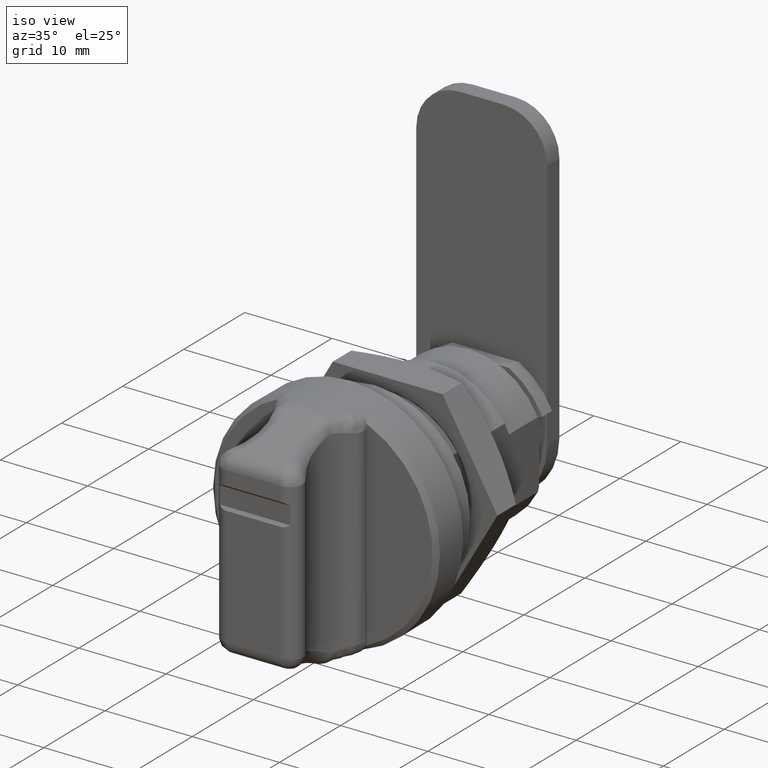
[diagram: clean part render]
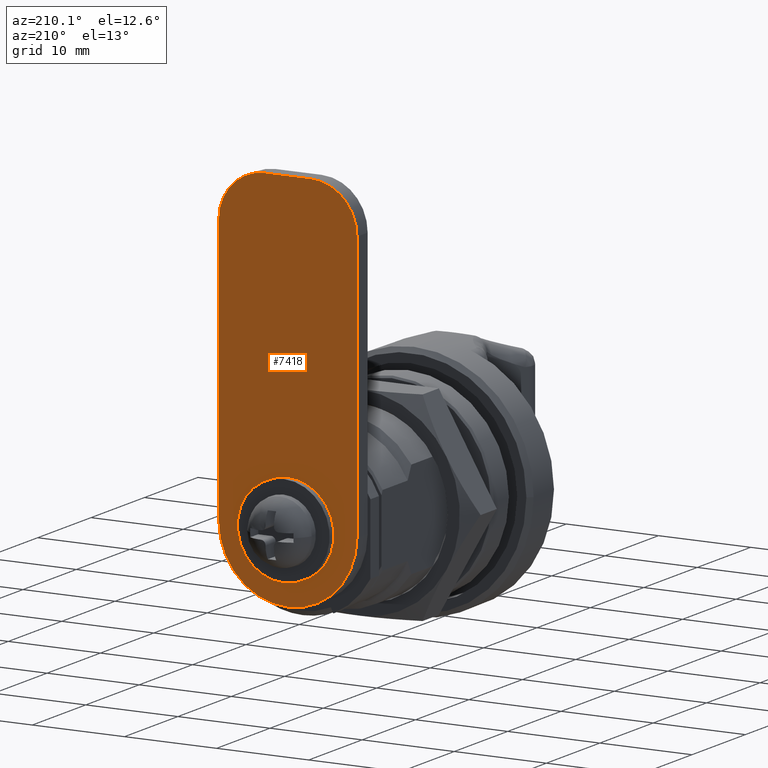
[diagram: tour spotlight — one face highlighted and labeled with its STEP entity id]
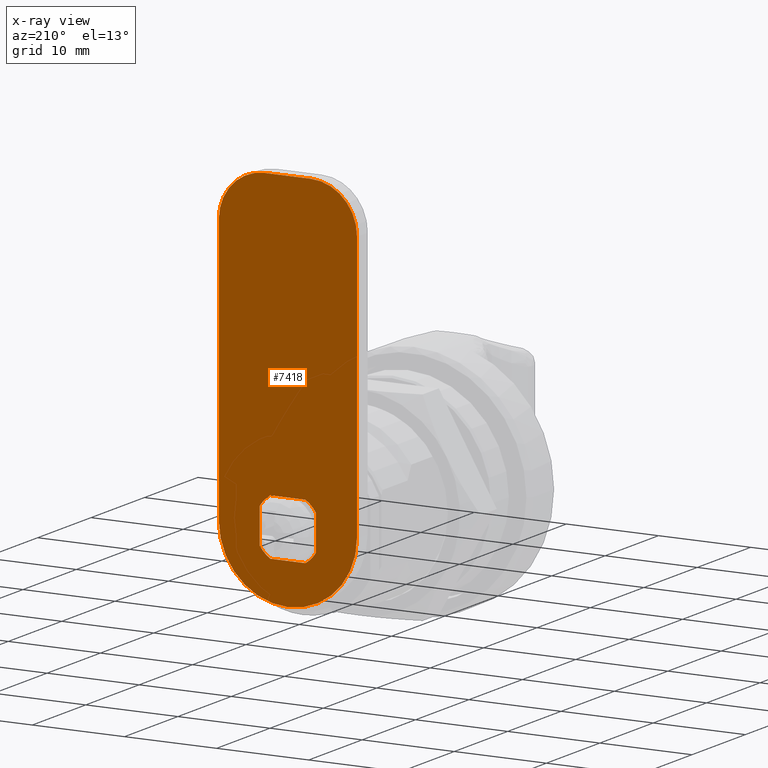
[diagram: x-ray of the same camera — body ghosted, this tour face saturated]
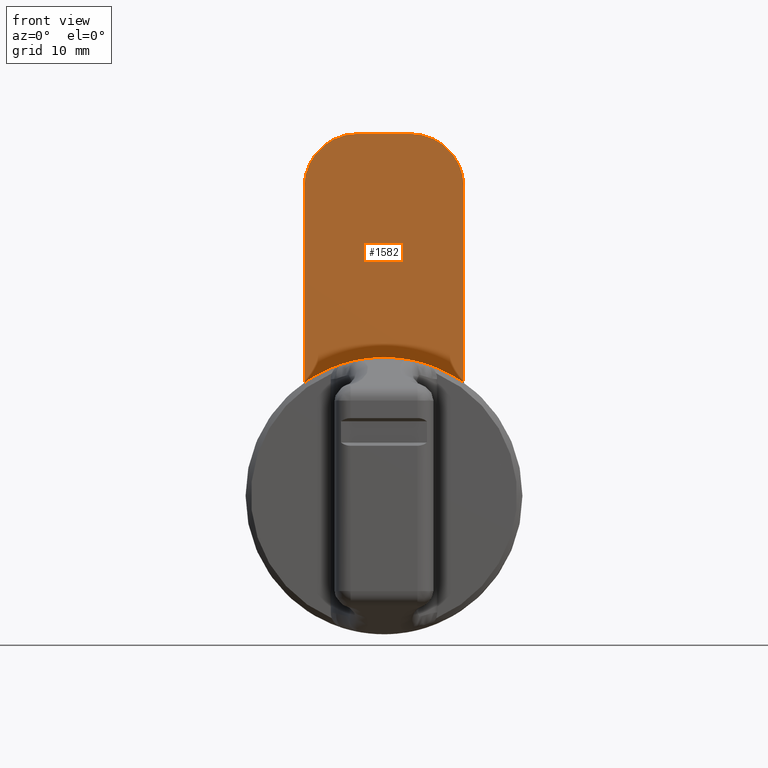
[diagram: tour spotlight — one face highlighted and labeled with its STEP entity id]
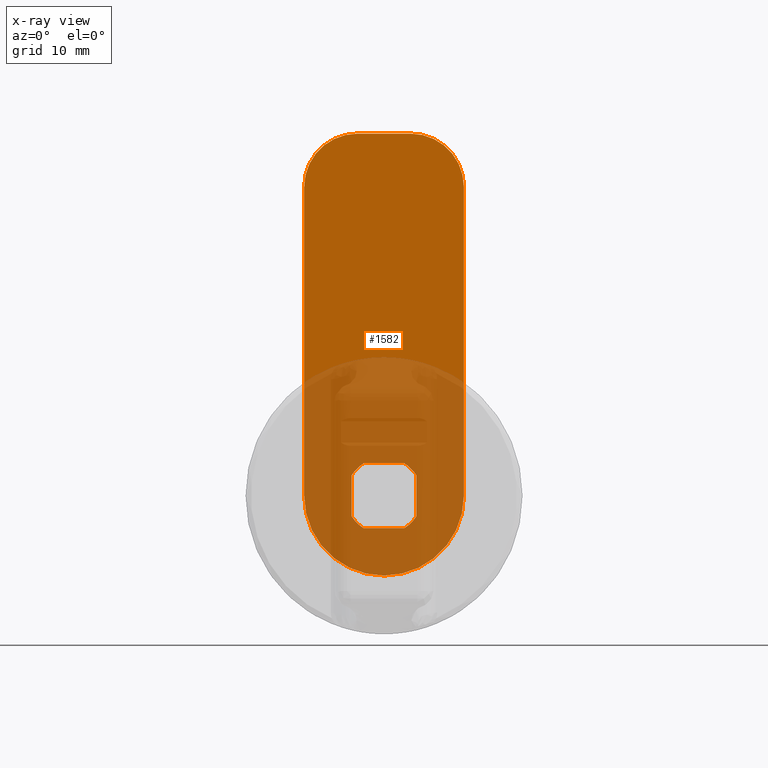
[diagram: x-ray of the same camera — body ghosted, this tour face saturated]
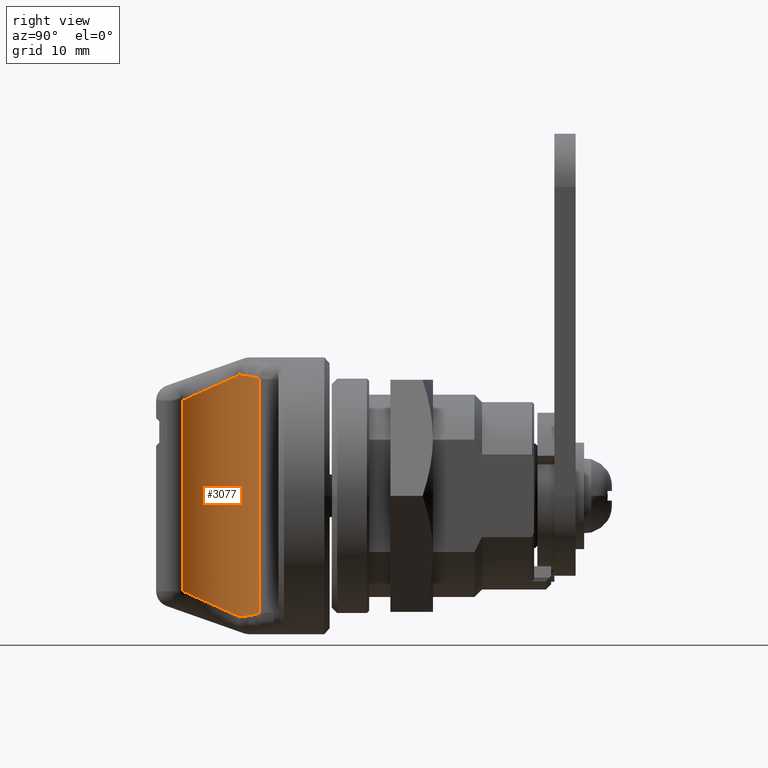
[diagram: tour spotlight — one face highlighted and labeled with its STEP entity id]
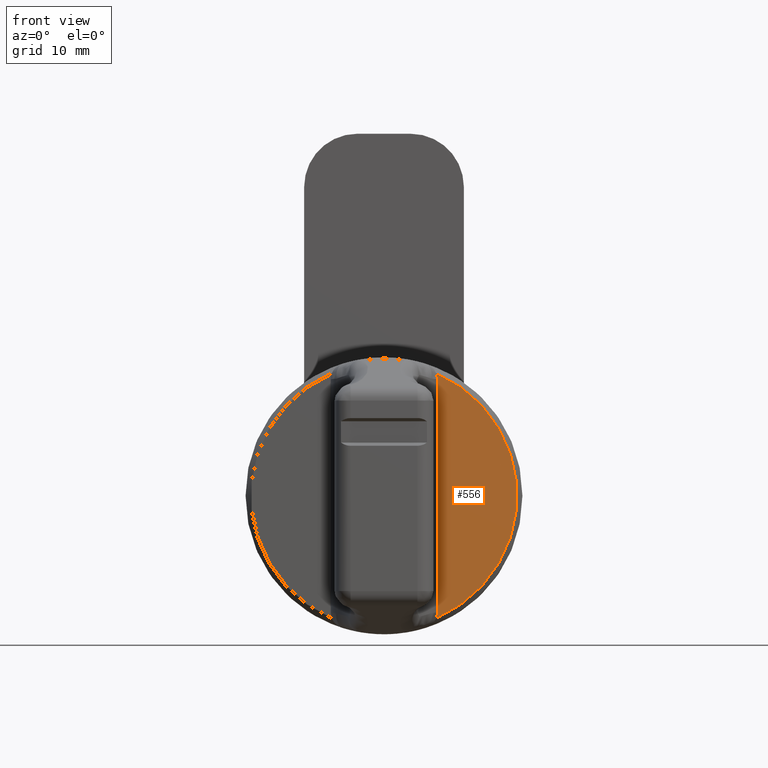
[diagram: tour spotlight — one face highlighted and labeled with its STEP entity id]
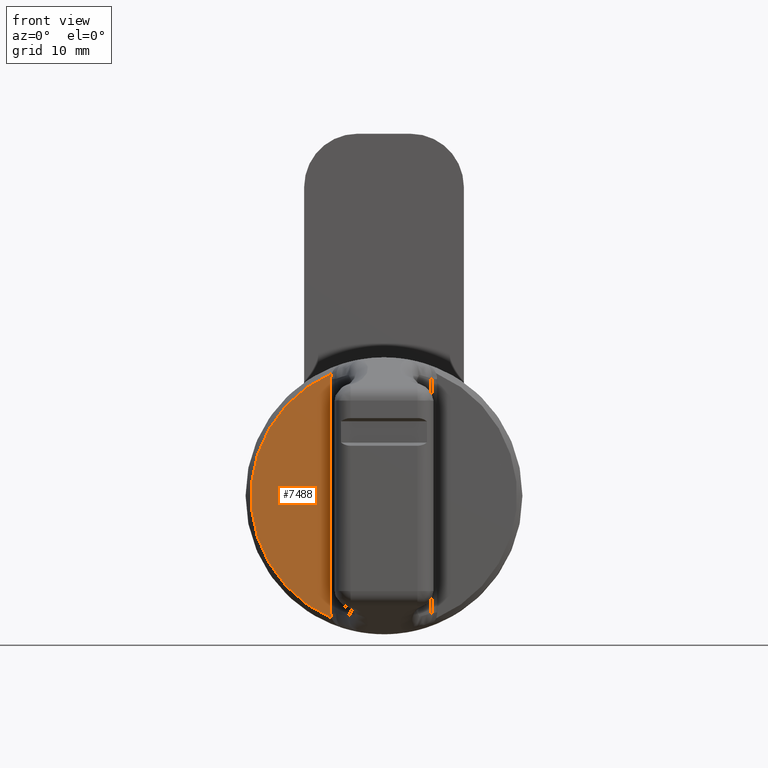
[diagram: tour spotlight — one face highlighted and labeled with its STEP entity id]
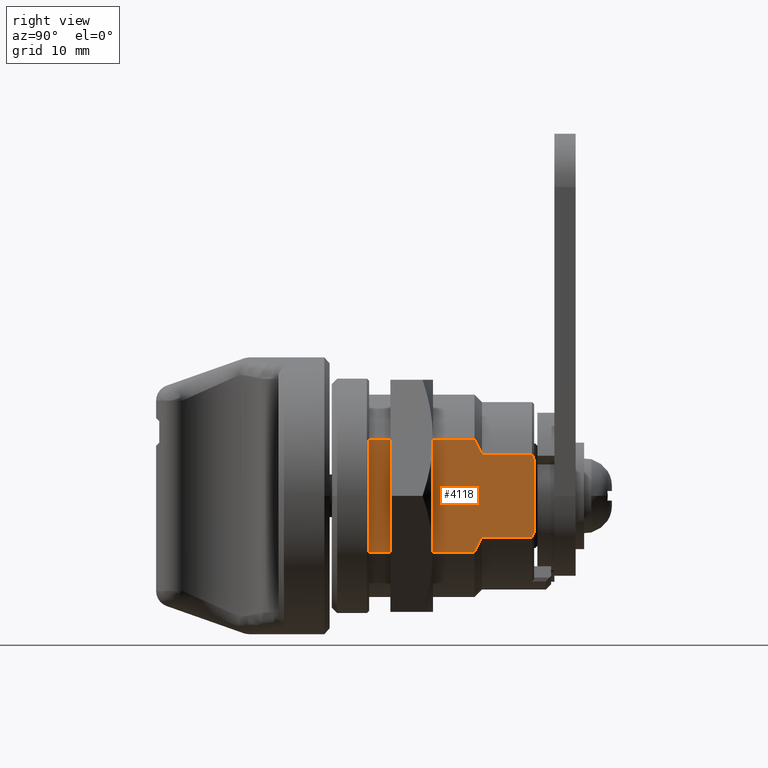
[diagram: tour spotlight — one face highlighted and labeled with its STEP entity id]
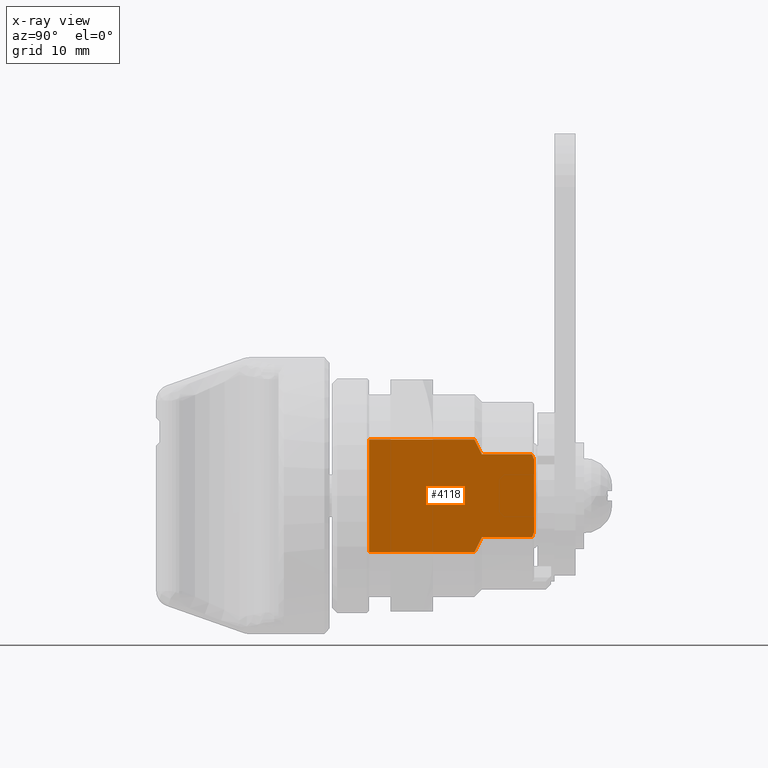
[diagram: x-ray of the same camera — body ghosted, this tour face saturated]
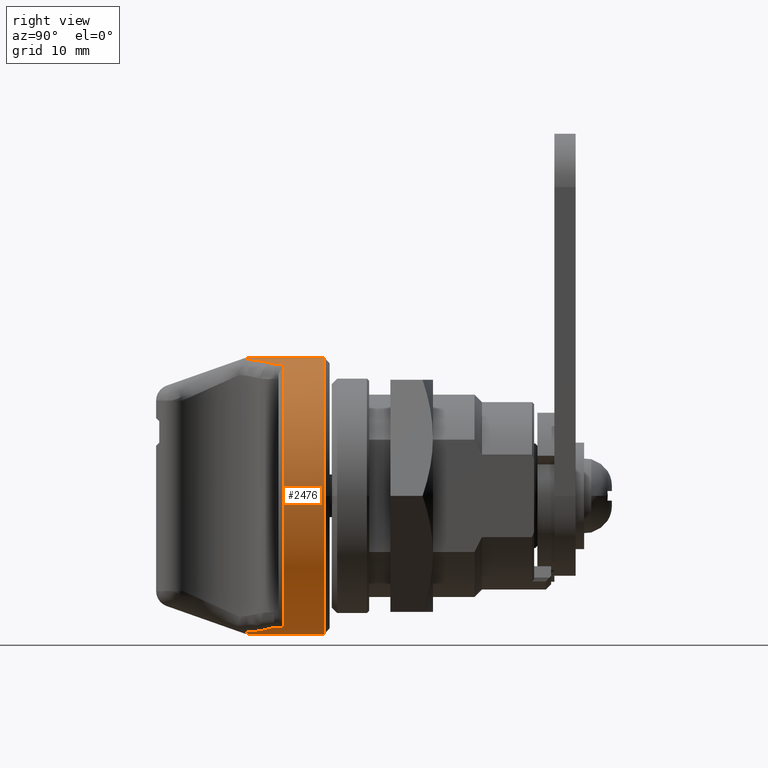
[diagram: tour spotlight — one face highlighted and labeled with its STEP entity id]
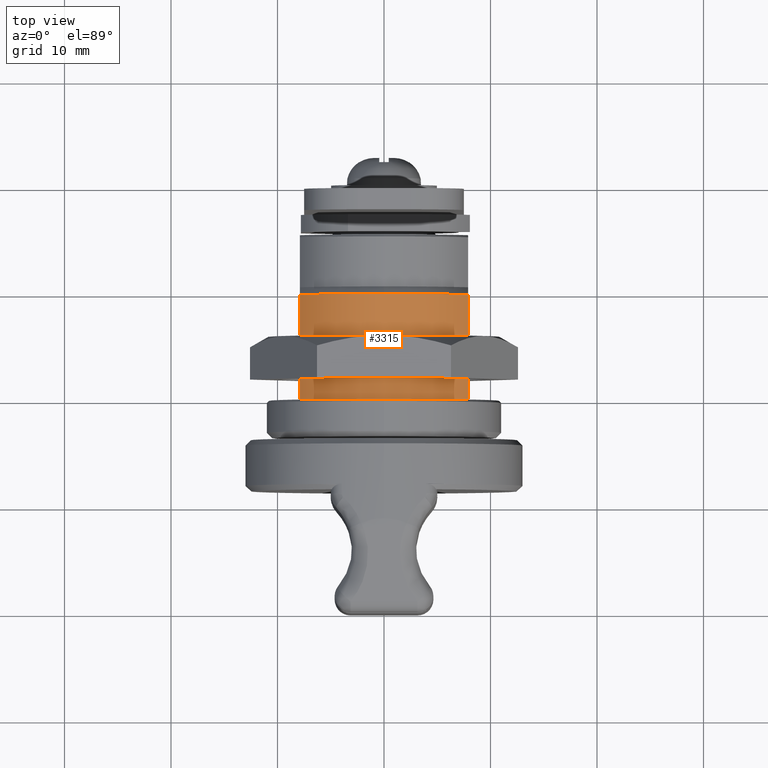
[diagram: tour spotlight — one face highlighted and labeled with its STEP entity id]
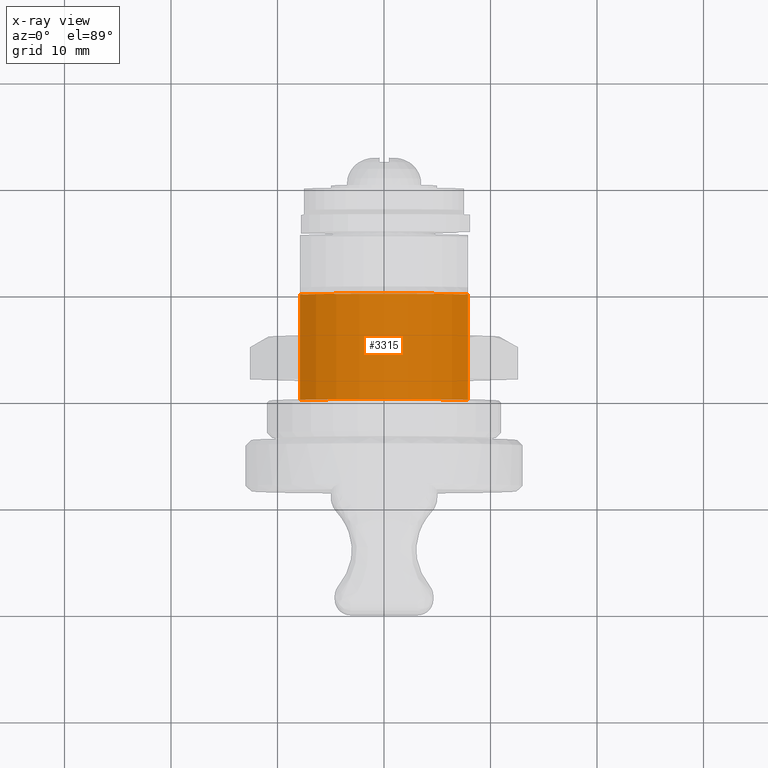
[diagram: x-ray of the same camera — body ghosted, this tour face saturated]
A machine part: a face-by-face anatomy tour. The part has 223 B-rep faces; the first image is the clean iso view, then the 8 largest visible faces are spotlighted one at a time (largest first), each with its STEP entity span.

Face 1 — auxiliary view, entity #7418. An x-ray twin of the same camera follows (body ghosted, this face saturated) — the face is partly hidden behind the body. In plain terms, the highlighted planar face has unit normal (-0, -1, -0).
Definition (entity closure, byte-faithful):
#58 = EDGE_CURVE ( 'NONE', #2986, #5236, #7402, .T. ) ;
#109 = CIRCLE ( 'NONE', #5167, 5.000000000000000900 ) ;
#184 = EDGE_LOOP ( 'NONE', ( #4931, #1507, #5626, #1093, #9991, #3789, #761 ) ) ;
#206 = CIRCLE ( 'NONE', #2169, 3.600000000000000500 ) ;
#330 = VERTEX_POINT ( 'NONE', #8469 ) ;
#412 = EDGE_CURVE ( 'NONE', #8127, #1893, #206, .T. ) ;
#484 = EDGE_CURVE ( 'NONE', #8103, #3790, #2212, .T. ) ;
#624 = DIRECTION ( 'NONE',  ( -1.000000000000000000, 0.0000000000000000000, 0.0000000000000000000 ) ) ;
#761 = ORIENTED_EDGE ( 'NONE', *, *, #4859, .F. ) ;
#941 = CARTESIAN_POINT ( 'NONE',  ( 19.39999999999998800, 3.050000000000000700, -1.912459149890263400 ) ) ;
#1093 = ORIENTED_EDGE ( 'NONE', *, *, #58, .F. ) ;
#1100 = CARTESIAN_POINT ( 'NONE',  ( 19.39999999999998800, -7.500000000000000000, 0.0000000000000000000 ) ) ;
#1107 = VECTOR ( 'NONE', #10183, 1000.000000000000000 ) ;
#1328 = DIRECTION ( 'NONE',  ( -0.0000000000000000000, -0.0000000000000000000, -1.000000000000000000 ) ) ;
#1389 = VERTEX_POINT ( 'NONE', #3593 ) ;
#1460 = PLANE ( 'NONE',  #2444 ) ;
#1507 = ORIENTED_EDGE ( 'NONE', *, *, #4153, .F. ) ;
#1735 = FACE_OUTER_BOUND ( 'NONE', #184, .T. ) ;
#1844 = DIRECTION ( 'NONE',  ( 0.0000000000000000000, 1.000000000000000000, -0.0000000000000000000 ) ) ;
#1893 = VERTEX_POINT ( 'NONE', #9787 ) ;
#1993 = CARTESIAN_POINT ( 'NONE',  ( 19.40000000000000200, 7.499999999990000900, -11.65000000000000000 ) ) ;
#2005 = VECTOR ( 'NONE', #1328, 1000.000000000000000 ) ;
#2169 = AXIS2_PLACEMENT_3D ( 'NONE', #2935, #8903, #3782 ) ;
#2212 = CIRCLE ( 'NONE', #3859, 3.600000000000000500 ) ;
#2253 = CARTESIAN_POINT ( 'NONE',  ( 19.39999999999997400, 2.499999999995000000, 34.00000000000000000 ) ) ;
#2354 = CARTESIAN_POINT ( 'NONE',  ( 19.39999999999997400, 0.0000000000000000000, 0.0000000000000000000 ) ) ;
#2382 = VERTEX_POINT ( 'NONE', #1100 ) ;
#2444 = AXIS2_PLACEMENT_3D ( 'NONE', #5721, #624, #6587 ) ;
#2686 = CARTESIAN_POINT ( 'NONE',  ( 19.40000000000000200, -9.000000000000001800, 34.00000000000000000 ) ) ;
#2853 = DIRECTION ( 'NONE',  ( -1.000000000000000000, 0.0000000000000000000, 0.0000000000000000000 ) ) ;
#2935 = CARTESIAN_POINT ( 'NONE',  ( 19.39999999999997400, 0.0000000000000000000, 0.0000000000000000000 ) ) ;
#2978 = CIRCLE ( 'NONE', #5183, 3.600000000000000500 ) ;
#2986 = VERTEX_POINT ( 'NONE', #8860 ) ;
#3089 = VECTOR ( 'NONE', #3135, 1000.000000000000000 ) ;
#3135 = DIRECTION ( 'NONE',  ( 0.0000000000000000000, 0.0000000000000000000, 1.000000000000000000 ) ) ;
#3190 = CIRCLE ( 'NONE', #9511, 5.000000000000000900 ) ;
#3214 = DIRECTION ( 'NONE',  ( 0.0000000000000000000, 3.552713678800500900E-015, -1.000000000000000000 ) ) ;
#3247 = ORIENTED_EDGE ( 'NONE', *, *, #3284, .T. ) ;
#3275 = VERTEX_POINT ( 'NONE', #9984 ) ;
#3284 = EDGE_CURVE ( 'NONE', #4958, #1389, #2978, .T. ) ;
#3393 = AXIS2_PLACEMENT_3D ( 'NONE', #7957, #2853, #8820 ) ;
#3531 = VERTEX_POINT ( 'NONE', #8792 ) ;
#3590 = EDGE_LOOP ( 'NONE', ( #8343, #7572, #5778, #7235, #7988, #5668, #7941, #3247 ) ) ;
#3593 = CARTESIAN_POINT ( 'NONE',  ( 19.39999999999998800, 3.050000000000000700, 1.912459149890263700 ) ) ;
#3749 = EDGE_CURVE ( 'NONE', #8103, #1893, #8526, .T. ) ;
#3780 = DIRECTION ( 'NONE',  ( -1.000000000000000000, 0.0000000000000000000, 0.0000000000000000000 ) ) ;
#3782 = DIRECTION ( 'NONE',  ( 0.0000000000000000000, 0.0000000000000000000, -1.000000000000000000 ) ) ;
#3789 = ORIENTED_EDGE ( 'NONE', *, *, #10582, .F. ) ;
#3790 = VERTEX_POINT ( 'NONE', #10714 ) ;
#3822 = VECTOR ( 'NONE', #9315, 1000.000000000000000 ) ;
#3859 = AXIS2_PLACEMENT_3D ( 'NONE', #9826, #4705, #10691 ) ;
#3879 = CARTESIAN_POINT ( 'NONE',  ( 19.40000000000000200, -3.049999999999999800, -11.65000000000000000 ) ) ;
#3982 = CARTESIAN_POINT ( 'NONE',  ( 19.39999999999997400, -2.500000000000000000, 29.00000000000000000 ) ) ;
#4153 = EDGE_CURVE ( 'NONE', #5264, #6060, #8521, .T. ) ;
#4223 = EDGE_CURVE ( 'NONE', #5236, #5264, #109, .T. ) ;
#4391 = CARTESIAN_POINT ( 'NONE',  ( 19.39999999999997400, 0.0000000000000000000, 0.0000000000000000000 ) ) ;
#4442 = DIRECTION ( 'NONE',  ( -1.000000000000000000, 0.0000000000000000000, 0.0000000000000000000 ) ) ;
#4705 = DIRECTION ( 'NONE',  ( -1.000000000000000000, 0.0000000000000000000, 0.0000000000000000000 ) ) ;
#4795 = CARTESIAN_POINT ( 'NONE',  ( 19.39999999999997400, 7.499999999992134300, 28.99999999999999600 ) ) ;
#4824 = DIRECTION ( 'NONE',  ( 0.0000000000000000000, 1.734723475976806700E-015, -1.000000000000000000 ) ) ;
#4859 = EDGE_CURVE ( 'NONE', #3275, #2382, #5403, .T. ) ;
#4864 = VECTOR ( 'NONE', #1844, 1000.000000000000000 ) ;
#4931 = ORIENTED_EDGE ( 'NONE', *, *, #9461, .F. ) ;
#4950 = AXIS2_PLACEMENT_3D ( 'NONE', #9576, #4442, #10422 ) ;
#4958 = VERTEX_POINT ( 'NONE', #6368 ) ;
#5167 = AXIS2_PLACEMENT_3D ( 'NONE', #8900, #3780, #9750 ) ;
#5183 = AXIS2_PLACEMENT_3D ( 'NONE', #2354, #8301, #3214 ) ;
#5236 = VERTEX_POINT ( 'NONE', #2253 ) ;
#5248 = DIRECTION ( 'NONE',  ( 0.0000000000000000000, 0.0000000000000000000, -1.000000000000000000 ) ) ;
#5264 = VERTEX_POINT ( 'NONE', #4795 ) ;
#5403 = CIRCLE ( 'NONE', #3393, 7.500000000000000000 ) ;
#5626 = ORIENTED_EDGE ( 'NONE', *, *, #4223, .F. ) ;
#5668 = ORIENTED_EDGE ( 'NONE', *, *, #484, .T. ) ;
#5721 = CARTESIAN_POINT ( 'NONE',  ( 19.40000000000000200, -9.000000000000001800, -11.65000000000000000 ) ) ;
#5778 = ORIENTED_EDGE ( 'NONE', *, *, #8525, .F. ) ;
#5883 = CARTESIAN_POINT ( 'NONE',  ( 19.40000000000000200, -9.000000000000001800, 3.050000000000000700 ) ) ;
#5999 = CARTESIAN_POINT ( 'NONE',  ( 19.39999999999998800, -3.049999999999999800, 1.912459149890264300 ) ) ;
#6060 = VERTEX_POINT ( 'NONE', #10978 ) ;
#6075 = CIRCLE ( 'NONE', #4950, 3.600000000000000500 ) ;
#6148 = EDGE_CURVE ( 'NONE', #4958, #3790, #10633, .T. ) ;
#6315 = CARTESIAN_POINT ( 'NONE',  ( 19.40000000000000200, -7.500000000000000000, -11.65000000000000000 ) ) ;
#6368 = CARTESIAN_POINT ( 'NONE',  ( 19.39999999999998800, 1.912459149890263400, 3.050000000000000700 ) ) ;
#6587 = DIRECTION ( 'NONE',  ( 0.0000000000000000000, 0.0000000000000000000, 1.000000000000000000 ) ) ;
#6597 = LINE ( 'NONE', #6315, #10884 ) ;
#7071 = DIRECTION ( 'NONE',  ( -0.0000000000000000000, -0.0000000000000000000, -1.000000000000000000 ) ) ;
#7077 = VERTEX_POINT ( 'NONE', #941 ) ;
#7179 = DIRECTION ( 'NONE',  ( 0.0000000000000000000, 0.0000000000000000000, 1.000000000000000000 ) ) ;
#7235 = ORIENTED_EDGE ( 'NONE', *, *, #412, .T. ) ;
#7386 = EDGE_CURVE ( 'NONE', #330, #2986, #3190, .T. ) ;
#7402 = LINE ( 'NONE', #2686, #4864 ) ;
#7418 = ADVANCED_FACE ( 'NONE', ( #9713, #1735 ), #1460, .F. ) ;
#7572 = ORIENTED_EDGE ( 'NONE', *, *, #8269, .T. ) ;
#7632 = LINE ( 'NONE', #9108, #3089 ) ;
#7647 = LINE ( 'NONE', #8559, #1107 ) ;
#7742 = CARTESIAN_POINT ( 'NONE',  ( 19.39999999999998800, -1.912459149890263700, -3.050000000000000700 ) ) ;
#7941 = ORIENTED_EDGE ( 'NONE', *, *, #6148, .F. ) ;
#7957 = CARTESIAN_POINT ( 'NONE',  ( 19.39999999999997400, 0.0000000000000000000, 0.0000000000000000000 ) ) ;
#7988 = ORIENTED_EDGE ( 'NONE', *, *, #3749, .F. ) ;
#8103 = VERTEX_POINT ( 'NONE', #5999 ) ;
#8127 = VERTEX_POINT ( 'NONE', #7742 ) ;
#8269 = EDGE_CURVE ( 'NONE', #7077, #3531, #6075, .T. ) ;
#8301 = DIRECTION ( 'NONE',  ( -1.000000000000000000, 0.0000000000000000000, 0.0000000000000000000 ) ) ;
#8343 = ORIENTED_EDGE ( 'NONE', *, *, #9100, .F. ) ;
#8469 = CARTESIAN_POINT ( 'NONE',  ( 19.39999999999998800, -7.500000000000000000, 29.00000000000000400 ) ) ;
#8521 = LINE ( 'NONE', #1993, #10783 ) ;
#8525 = EDGE_CURVE ( 'NONE', #8127, #3531, #7647, .T. ) ;
#8526 = LINE ( 'NONE', #3879, #2005 ) ;
#8559 = CARTESIAN_POINT ( 'NONE',  ( 19.40000000000000200, -9.000000000000001800, -3.050000000000000700 ) ) ;
#8792 = CARTESIAN_POINT ( 'NONE',  ( 19.39999999999998800, 1.912459149890263400, -3.050000000000000700 ) ) ;
#8820 = DIRECTION ( 'NONE',  ( 0.0000000000000000000, 0.0000000000000000000, -1.000000000000000000 ) ) ;
#8860 = CARTESIAN_POINT ( 'NONE',  ( 19.39999999999998800, -2.500000000000000400, 34.00000000000000000 ) ) ;
#8900 = CARTESIAN_POINT ( 'NONE',  ( 19.39999999999997400, 2.499999999990000400, 29.00000000000000000 ) ) ;
#8903 = DIRECTION ( 'NONE',  ( -1.000000000000000000, 0.0000000000000000000, 0.0000000000000000000 ) ) ;
#9100 = EDGE_CURVE ( 'NONE', #7077, #1389, #7632, .T. ) ;
#9108 = CARTESIAN_POINT ( 'NONE',  ( 19.40000000000000200, 3.050000000000000700, -11.65000000000000000 ) ) ;
#9315 = DIRECTION ( 'NONE',  ( -0.0000000000000000000, -1.000000000000000000, 0.0000000000000000000 ) ) ;
#9356 = CIRCLE ( 'NONE', #10850, 7.500000000000000000 ) ;
#9461 = EDGE_CURVE ( 'NONE', #6060, #3275, #9356, .T. ) ;
#9511 = AXIS2_PLACEMENT_3D ( 'NONE', #3982, #9952, #4824 ) ;
#9576 = CARTESIAN_POINT ( 'NONE',  ( 19.39999999999997400, 0.0000000000000000000, 0.0000000000000000000 ) ) ;
#9713 = FACE_BOUND ( 'NONE', #3590, .T. ) ;
#9750 = DIRECTION ( 'NONE',  ( 0.0000000000000000000, 0.0000000000000000000, -1.000000000000000000 ) ) ;
#9787 = CARTESIAN_POINT ( 'NONE',  ( 19.39999999999998800, -3.049999999999999800, -1.912459149890264600 ) ) ;
#9826 = CARTESIAN_POINT ( 'NONE',  ( 19.39999999999997400, 0.0000000000000000000, 0.0000000000000000000 ) ) ;
#9952 = DIRECTION ( 'NONE',  ( -1.000000000000000000, 0.0000000000000000000, 0.0000000000000000000 ) ) ;
#9984 = CARTESIAN_POINT ( 'NONE',  ( 19.39999999999997400, 0.0000000000000000000, -7.500000000000000000 ) ) ;
#9991 = ORIENTED_EDGE ( 'NONE', *, *, #7386, .F. ) ;
#10183 = DIRECTION ( 'NONE',  ( 0.0000000000000000000, 1.000000000000000000, -0.0000000000000000000 ) ) ;
#10365 = DIRECTION ( 'NONE',  ( -1.000000000000000000, 0.0000000000000000000, 0.0000000000000000000 ) ) ;
#10422 = DIRECTION ( 'NONE',  ( 0.0000000000000000000, 8.881784197001252300E-015, -1.000000000000000000 ) ) ;
#10582 = EDGE_CURVE ( 'NONE', #2382, #330, #6597, .T. ) ;
#10633 = LINE ( 'NONE', #5883, #3822 ) ;
#10691 = DIRECTION ( 'NONE',  ( 0.0000000000000000000, 0.0000000000000000000, -1.000000000000000000 ) ) ;
#10714 = CARTESIAN_POINT ( 'NONE',  ( 19.39999999999998800, -1.912459149890263700, 3.050000000000000700 ) ) ;
#10783 = VECTOR ( 'NONE', #7071, 1000.000000000000000 ) ;
#10850 = AXIS2_PLACEMENT_3D ( 'NONE', #4391, #10365, #5248 ) ;
#10884 = VECTOR ( 'NONE', #7179, 1000.000000000000000 ) ;
#10978 = CARTESIAN_POINT ( 'NONE',  ( 19.39999999999997400, 7.499999999995000400, -2.296212748401287000E-016 ) ) ;

Face 2 — front view, entity #1582. An x-ray twin of the same camera follows (body ghosted, this face saturated) — the face is partly hidden behind the body. In plain terms, the highlighted planar face has unit normal (-0, -1, -0).
Definition (entity closure, byte-faithful):
#85 = VECTOR ( 'NONE', #2800, 1000.000000000000000 ) ;
#262 = EDGE_CURVE ( 'NONE', #3029, #1380, #1012, .T. ) ;
#263 = ORIENTED_EDGE ( 'NONE', *, *, #2839, .F. ) ;
#440 = PLANE ( 'NONE',  #8457 ) ;
#468 = VERTEX_POINT ( 'NONE', #3823 ) ;
#627 = EDGE_LOOP ( 'NONE', ( #805, #1511, #5765, #3495, #2936, #5916, #9897, #8642 ) ) ;
#628 = DIRECTION ( 'NONE',  ( 0.0000000000000000000, -1.796336068400000000E-013, 1.000000000000000000 ) ) ;
#690 = CARTESIAN_POINT ( 'NONE',  ( 17.39999999999999900, -3.049999999999999800, -2.294950979869999900 ) ) ;
#727 = ORIENTED_EDGE ( 'NONE', *, *, #9658, .F. ) ;
#805 = ORIENTED_EDGE ( 'NONE', *, *, #6981, .T. ) ;
#868 = CARTESIAN_POINT ( 'NONE',  ( 17.40000000000008400, 0.0000000000000000000, 0.0000000000000000000 ) ) ;
#972 = VERTEX_POINT ( 'NONE', #10097 ) ;
#1012 = LINE ( 'NONE', #9518, #5271 ) ;
#1233 = VERTEX_POINT ( 'NONE', #7757 ) ;
#1241 = CIRCLE ( 'NONE', #10976, 3.600000000000000500 ) ;
#1380 = VERTEX_POINT ( 'NONE', #2729 ) ;
#1492 = DIRECTION ( 'NONE',  ( 1.000000000000000000, -0.0000000000000000000, -0.0000000000000000000 ) ) ;
#1511 = ORIENTED_EDGE ( 'NONE', *, *, #262, .F. ) ;
#1582 = ADVANCED_FACE ( 'NONE', ( #3602, #5577 ), #440, .T. ) ;
#1625 = AXIS2_PLACEMENT_3D ( 'NONE', #4610, #10586, #5476 ) ;
#1706 = CIRCLE ( 'NONE', #7217, 5.000000000000000900 ) ;
#1731 = DIRECTION ( 'NONE',  ( 0.0000000000000000000, -0.0000000000000000000, -1.000000000000000000 ) ) ;
#1740 = DIRECTION ( 'NONE',  ( 0.0000000000000000000, 0.0000000000000000000, -1.000000000000000000 ) ) ;
#1848 = VERTEX_POINT ( 'NONE', #9752 ) ;
#1861 = CIRCLE ( 'NONE', #7395, 3.600000000000000500 ) ;
#2063 = CARTESIAN_POINT ( 'NONE',  ( 17.40000000000004100, 3.049999999999999800, 1.912459149890264800 ) ) ;
#2083 = VERTEX_POINT ( 'NONE', #10766 ) ;
#2499 = CARTESIAN_POINT ( 'NONE',  ( 17.40000000000004100, -2.500000000000000000, 34.00000000000000000 ) ) ;
#2551 = DIRECTION ( 'NONE',  ( 1.000000000000000000, -0.0000000000000000000, -0.0000000000000000000 ) ) ;
#2729 = CARTESIAN_POINT ( 'NONE',  ( 17.40000000000004100, 3.049999999999999800, -1.912459149890264300 ) ) ;
#2772 = VERTEX_POINT ( 'NONE', #5282 ) ;
#2800 = DIRECTION ( 'NONE',  ( -0.0000000000000000000, -1.000000000000000000, -0.0000000000000000000 ) ) ;
#2815 = CARTESIAN_POINT ( 'NONE',  ( 17.40000000000004100, -3.049999999999999800, 1.912459149890264300 ) ) ;
#2839 = EDGE_CURVE ( 'NONE', #6830, #4603, #6869, .T. ) ;
#2847 = ORIENTED_EDGE ( 'NONE', *, *, #8913, .F. ) ;
#2936 = ORIENTED_EDGE ( 'NONE', *, *, #9767, .T. ) ;
#3029 = VERTEX_POINT ( 'NONE', #2063 ) ;
#3206 = LINE ( 'NONE', #6310, #9723 ) ;
#3495 = ORIENTED_EDGE ( 'NONE', *, *, #3862, .F. ) ;
#3602 = FACE_BOUND ( 'NONE', #627, .T. ) ;
#3725 = CARTESIAN_POINT ( 'NONE',  ( 17.40000000000008400, 0.0000000000000000000, 0.0000000000000000000 ) ) ;
#3823 = CARTESIAN_POINT ( 'NONE',  ( 17.40000000000004100, -1.912459149890264800, -3.049999999999999800 ) ) ;
#3857 = CARTESIAN_POINT ( 'NONE',  ( 17.39999999999999900, -9.000000000000001800, -11.65000000000000000 ) ) ;
#3862 = EDGE_CURVE ( 'NONE', #972, #1233, #8243, .T. ) ;
#3960 = VECTOR ( 'NONE', #6662, 1000.000000000000000 ) ;
#3963 = EDGE_CURVE ( 'NONE', #4254, #468, #1861, .T. ) ;
#4222 = CARTESIAN_POINT ( 'NONE',  ( 17.40000000000008400, -2.500000000000000000, 29.00000000000000000 ) ) ;
#4254 = VERTEX_POINT ( 'NONE', #5559 ) ;
#4371 = VERTEX_POINT ( 'NONE', #9128 ) ;
#4380 = EDGE_CURVE ( 'NONE', #1848, #468, #7032, .T. ) ;
#4549 = CARTESIAN_POINT ( 'NONE',  ( 17.40000000000008400, 0.0000000000000000000, -7.500000000000000000 ) ) ;
#4563 = DIRECTION ( 'NONE',  ( 0.0000000000000000000, 0.0000000000000000000, -1.000000000000000000 ) ) ;
#4603 = VERTEX_POINT ( 'NONE', #2499 ) ;
#4610 = CARTESIAN_POINT ( 'NONE',  ( 17.40000000000008400, 2.499999999990000400, 29.00000000000000000 ) ) ;
#4651 = EDGE_CURVE ( 'NONE', #4603, #5446, #1706, .T. ) ;
#4707 = DIRECTION ( 'NONE',  ( 1.000000000000000000, -0.0000000000000000000, -0.0000000000000000000 ) ) ;
#4708 = DIRECTION ( 'NONE',  ( 0.0000000000000000000, 0.0000000000000000000, 1.000000000000000000 ) ) ;
#4810 = CARTESIAN_POINT ( 'NONE',  ( 17.39999999999999900, -2.294950979869999900, -3.049999999999999800 ) ) ;
#4828 = CARTESIAN_POINT ( 'NONE',  ( 17.40000000000008400, 0.0000000000000000000, 0.0000000000000000000 ) ) ;
#4853 = DIRECTION ( 'NONE',  ( -0.0000000000000000000, -1.000000000000000000, -0.0000000000000000000 ) ) ;
#4955 = CARTESIAN_POINT ( 'NONE',  ( 17.40000000000006300, 2.499999999995000000, 34.00000000000000000 ) ) ;
#4995 = CARTESIAN_POINT ( 'NONE',  ( 17.40000000000004100, -7.500000000000000000, 29.00000000000000000 ) ) ;
#5095 = DIRECTION ( 'NONE',  ( 0.0000000000000000000, 0.0000000000000000000, -1.000000000000000000 ) ) ;
#5271 = VECTOR ( 'NONE', #1731, 1000.000000000000000 ) ;
#5282 = CARTESIAN_POINT ( 'NONE',  ( 17.40000000000004100, -7.500000000000000000, 0.0000000000000000000 ) ) ;
#5322 = EDGE_LOOP ( 'NONE', ( #9127, #7581, #7552, #727, #7735, #263, #2847 ) ) ;
#5431 = DIRECTION ( 'NONE',  ( 0.0000000000000000000, -0.0000000000000000000, -1.000000000000000000 ) ) ;
#5446 = VERTEX_POINT ( 'NONE', #4995 ) ;
#5462 = VECTOR ( 'NONE', #628, 1000.000000000000000 ) ;
#5476 = DIRECTION ( 'NONE',  ( 0.0000000000000000000, 0.0000000000000000000, -1.000000000000000000 ) ) ;
#5488 = CIRCLE ( 'NONE', #1625, 5.000000000000000900 ) ;
#5559 = CARTESIAN_POINT ( 'NONE',  ( 17.40000000000004100, -3.049999999999999800, -1.912459149890264800 ) ) ;
#5577 = FACE_OUTER_BOUND ( 'NONE', #5322, .T. ) ;
#5687 = DIRECTION ( 'NONE',  ( 0.0000000000000000000, 0.0000000000000000000, -1.000000000000000000 ) ) ;
#5708 = CIRCLE ( 'NONE', #6033, 3.600000000000000500 ) ;
#5765 = ORIENTED_EDGE ( 'NONE', *, *, #8876, .T. ) ;
#5916 = ORIENTED_EDGE ( 'NONE', *, *, #9950, .F. ) ;
#6033 = AXIS2_PLACEMENT_3D ( 'NONE', #9832, #4707, #10693 ) ;
#6162 = CARTESIAN_POINT ( 'NONE',  ( 17.39999999999999900, -3.000000000000000000, 34.00000000000000000 ) ) ;
#6310 = CARTESIAN_POINT ( 'NONE',  ( 17.39999999999999900, -7.500000000000000000, 31.89999999999999900 ) ) ;
#6481 = DIRECTION ( 'NONE',  ( 0.0000000000000000000, 1.000000000000000000, 0.0000000000000000000 ) ) ;
#6588 = CARTESIAN_POINT ( 'NONE',  ( 17.40000000000008400, 0.0000000000000000000, 0.0000000000000000000 ) ) ;
#6591 = CARTESIAN_POINT ( 'NONE',  ( 17.39999999999999900, 7.500000000000000000, -2.899999999999999900 ) ) ;
#6662 = DIRECTION ( 'NONE',  ( 0.0000000000000000000, -0.0000000000000000000, 1.000000000000000000 ) ) ;
#6821 = DIRECTION ( 'NONE',  ( 1.000000000000000000, -0.0000000000000000000, -0.0000000000000000000 ) ) ;
#6830 = VERTEX_POINT ( 'NONE', #4955 ) ;
#6869 = LINE ( 'NONE', #6162, #85 ) ;
#6923 = AXIS2_PLACEMENT_3D ( 'NONE', #7658, #2551, #8704 ) ;
#6981 = EDGE_CURVE ( 'NONE', #1848, #1380, #7174, .T. ) ;
#7032 = LINE ( 'NONE', #4810, #8776 ) ;
#7174 = CIRCLE ( 'NONE', #8572, 3.600000000000000500 ) ;
#7217 = AXIS2_PLACEMENT_3D ( 'NONE', #4222, #10197, #5095 ) ;
#7394 = CIRCLE ( 'NONE', #6923, 7.500000000000000000 ) ;
#7395 = AXIS2_PLACEMENT_3D ( 'NONE', #6588, #1492, #7449 ) ;
#7449 = DIRECTION ( 'NONE',  ( 0.0000000000000000000, 0.0000000000000000000, -1.000000000000000000 ) ) ;
#7552 = ORIENTED_EDGE ( 'NONE', *, *, #10436, .F. ) ;
#7581 = ORIENTED_EDGE ( 'NONE', *, *, #9097, .F. ) ;
#7658 = CARTESIAN_POINT ( 'NONE',  ( 17.40000000000008400, 0.0000000000000000000, 0.0000000000000000000 ) ) ;
#7735 = ORIENTED_EDGE ( 'NONE', *, *, #4651, .F. ) ;
#7757 = CARTESIAN_POINT ( 'NONE',  ( 17.40000000000004100, 1.912459149890264300, 3.049999999999999800 ) ) ;
#8243 = LINE ( 'NONE', #9886, #9342 ) ;
#8457 = AXIS2_PLACEMENT_3D ( 'NONE', #3857, #9836, #4708 ) ;
#8572 = AXIS2_PLACEMENT_3D ( 'NONE', #868, #6821, #1740 ) ;
#8642 = ORIENTED_EDGE ( 'NONE', *, *, #4380, .F. ) ;
#8704 = DIRECTION ( 'NONE',  ( 0.0000000000000000000, 0.0000000000000000000, -1.000000000000000000 ) ) ;
#8776 = VECTOR ( 'NONE', #4853, 1000.000000000000000 ) ;
#8818 = VERTEX_POINT ( 'NONE', #2815 ) ;
#8876 = EDGE_CURVE ( 'NONE', #3029, #1233, #1241, .T. ) ;
#8913 = EDGE_CURVE ( 'NONE', #4371, #6830, #5488, .T. ) ;
#9049 = AXIS2_PLACEMENT_3D ( 'NONE', #4828, #10831, #5687 ) ;
#9097 = EDGE_CURVE ( 'NONE', #10934, #2083, #9888, .T. ) ;
#9127 = ORIENTED_EDGE ( 'NONE', *, *, #9339, .F. ) ;
#9128 = CARTESIAN_POINT ( 'NONE',  ( 17.40000000000004100, 7.499999999994270400, 29.00000000000044800 ) ) ;
#9339 = EDGE_CURVE ( 'NONE', #2083, #4371, #10008, .T. ) ;
#9342 = VECTOR ( 'NONE', #6481, 1000.000000000000000 ) ;
#9518 = CARTESIAN_POINT ( 'NONE',  ( 17.39999999999999900, 3.049999999999999800, 2.294950979869999900 ) ) ;
#9658 = EDGE_CURVE ( 'NONE', #5446, #2772, #3206, .T. ) ;
#9695 = DIRECTION ( 'NONE',  ( 1.000000000000000000, -0.0000000000000000000, -0.0000000000000000000 ) ) ;
#9723 = VECTOR ( 'NONE', #5431, 1000.000000000000000 ) ;
#9752 = CARTESIAN_POINT ( 'NONE',  ( 17.40000000000004100, 1.912459149890264300, -3.049999999999999800 ) ) ;
#9767 = EDGE_CURVE ( 'NONE', #972, #8818, #5708, .T. ) ;
#9832 = CARTESIAN_POINT ( 'NONE',  ( 17.40000000000008400, 0.0000000000000000000, 0.0000000000000000000 ) ) ;
#9836 = DIRECTION ( 'NONE',  ( -1.000000000000000000, 0.0000000000000000000, 0.0000000000000000000 ) ) ;
#9886 = CARTESIAN_POINT ( 'NONE',  ( 17.39999999999999900, -2.294950979869999900, 3.049999999999999800 ) ) ;
#9888 = CIRCLE ( 'NONE', #9049, 7.500000000000000000 ) ;
#9897 = ORIENTED_EDGE ( 'NONE', *, *, #3963, .T. ) ;
#9950 = EDGE_CURVE ( 'NONE', #4254, #8818, #10500, .T. ) ;
#10008 = LINE ( 'NONE', #6591, #5462 ) ;
#10097 = CARTESIAN_POINT ( 'NONE',  ( 17.40000000000004100, -1.912459149890264800, 3.049999999999999800 ) ) ;
#10197 = DIRECTION ( 'NONE',  ( 1.000000000000000000, -0.0000000000000000000, -0.0000000000000000000 ) ) ;
#10436 = EDGE_CURVE ( 'NONE', #2772, #10934, #7394, .T. ) ;
#10500 = LINE ( 'NONE', #690, #3960 ) ;
#10586 = DIRECTION ( 'NONE',  ( 1.000000000000000000, -0.0000000000000000000, -0.0000000000000000000 ) ) ;
#10693 = DIRECTION ( 'NONE',  ( 0.0000000000000000000, 0.0000000000000000000, -1.000000000000000000 ) ) ;
#10766 = CARTESIAN_POINT ( 'NONE',  ( 17.40000000000008400, 7.499999999999739800, 6.733964043751130300E-013 ) ) ;
#10831 = DIRECTION ( 'NONE',  ( 1.000000000000000000, -0.0000000000000000000, -0.0000000000000000000 ) ) ;
#10934 = VERTEX_POINT ( 'NONE', #4549 ) ;
#10976 = AXIS2_PLACEMENT_3D ( 'NONE', #3725, #9695, #4563 ) ;

Face 3 — right view, entity #3077. In plain terms, the highlighted cylindrical surface (partial cylindrical patch) has radius 5.5 mm, axis along (-0, 0, -1).
Definition (entity closure, byte-faithful):
#41 = CARTESIAN_POINT ( 'NONE',  ( -16.76941785959999700, -3.724509157680000000, 9.282946093910004100 ) ) ;
#53 = CARTESIAN_POINT ( 'NONE',  ( -17.53571428570208100, -4.287076491347515500, 8.938727378449822700 ) ) ;
#482 = EDGE_LOOP ( 'NONE', ( #7638, #4084, #6840, #3042, #3014, #7248 ) ) ;
#506 = CARTESIAN_POINT ( 'NONE',  ( -12.18305969120138800, -3.308783580483962300, -11.34312837280012200 ) ) ;
#510 = CARTESIAN_POINT ( 'NONE',  ( -10.83390258960000100, -3.987067215500000200, -11.16767831220000100 ) ) ;
#544 = EDGE_CURVE ( 'NONE', #7597, #592, #3072, .T. ) ;
#592 = VERTEX_POINT ( 'NONE', #9900 ) ;
#895 = CARTESIAN_POINT ( 'NONE',  ( -15.45544280270000000, -3.174901473719999900, 9.873180878849998600 ) ) ;
#982 = CARTESIAN_POINT ( 'NONE',  ( -12.18305969120138800, -3.308783580483961800, 11.34312837280012200 ) ) ;
#1189 = CARTESIAN_POINT ( 'NONE',  ( -10.26071902339984200, -4.466666666659828700, -10.99616094620307300 ) ) ;
#1295 = B_SPLINE_CURVE_WITH_KNOTS ( 'NONE', 3,
 ( #982, #6958, #1864, #7810, #2699, #8676 ),
 .UNSPECIFIED., .F., .F.,
 ( 4, 2, 4 ),
 ( 0.0000000000000000000, 0.4999999999982643300, 1.000000000000000000 ),
 .UNSPECIFIED. ) ;
#1387 = VECTOR ( 'NONE', #5376, 1000.000000000000000 ) ;
#1765 = CARTESIAN_POINT ( 'NONE',  ( -14.04458469230000100, -2.979764473169999900, 10.50693532419999900 ) ) ;
#1864 = CARTESIAN_POINT ( 'NONE',  ( -11.48191083580000300, -3.595921966560000200, 11.27888353440000000 ) ) ;
#2003 = CARTESIAN_POINT ( 'NONE',  ( -10.26071902339984000, -4.466666666663162000, 10.99616094620307300 ) ) ;
#2130 = DIRECTION ( 'NONE',  ( -0.0000000000000000000, 0.0000000000000000000, -1.000000000000000000 ) ) ;
#2230 = CARTESIAN_POINT ( 'NONE',  ( -13.09880738829999900, -3.053639752740000100, -10.93177646610000100 ) ) ;
#2236 = CARTESIAN_POINT ( 'NONE',  ( -10.26071902339984200, -4.466666666659828700, -10.99616094620307300 ) ) ;
#2558 = EDGE_CURVE ( 'NONE', #10486, #7597, #3553, .T. ) ;
#2606 = CARTESIAN_POINT ( 'NONE',  ( -12.63076763060000100, -3.152084545810000200, 11.14201892409999900 ) ) ;
#2628 = EDGE_CURVE ( 'NONE', #6289, #10545, #9868, .T. ) ;
#2699 = CARTESIAN_POINT ( 'NONE',  ( -10.53576087120000100, -4.211676894070000900, 11.09552221510000100 ) ) ;
#3014 = ORIENTED_EDGE ( 'NONE', *, *, #8295, .F. ) ;
#3042 = ORIENTED_EDGE ( 'NONE', *, *, #2628, .F. ) ;
#3072 = B_SPLINE_CURVE_WITH_KNOTS ( 'NONE', 3,
 ( #2236, #6454, #510, #8192, #3079, #9057 ),
 .UNSPECIFIED., .F., .F.,
 ( 4, 2, 4 ),
 ( 0.0000000000000000000, 0.5000000000000000000, 1.000000000000000000 ),
 .UNSPECIFIED. ) ;
#3075 = CARTESIAN_POINT ( 'NONE',  ( -14.52224296690000000, -3.004342591649999900, -10.29237224890000100 ) ) ;
#3077 = ADVANCED_FACE ( 'NONE', ( #7809 ), #4458, .F. ) ;
#3079 = CARTESIAN_POINT ( 'NONE',  ( -11.82214427449999900, -3.435104988740000000, -11.31629783220000200 ) ) ;
#3553 = LINE ( 'NONE', #10981, #5532 ) ;
#3920 = CARTESIAN_POINT ( 'NONE',  ( -15.91091490310000000, -3.320869542140000100, -9.668583785619999200 ) ) ;
#4084 = ORIENTED_EDGE ( 'NONE', *, *, #2558, .F. ) ;
#4149 = B_SPLINE_CURVE_WITH_KNOTS ( 'NONE', 3,
 ( #506, #10719, #2230, #8185, #3075, #9054, #3920, #9893, #4772, #10761 ),
 .UNSPECIFIED., .F., .F.,
 ( 4, 2, 2, 2, 4 ),
 ( 0.0000000000000000000, 0.2500000000048315800, 0.5000000000000004400, 0.7500000000048320200, 1.000000000000000000 ),
 .UNSPECIFIED. ) ;
#4458 = CYLINDRICAL_SURFACE ( 'NONE', #5955, 5.499999999950001800 ) ;
#4702 = DIRECTION ( 'NONE',  ( -1.000000000000000000, 0.0000000000000000000, 0.0000000000000000000 ) ) ;
#4772 = CARTESIAN_POINT ( 'NONE',  ( -17.17238107709999900, -3.982147523730000600, -9.101935878570000000 ) ) ;
#5104 = CARTESIAN_POINT ( 'NONE',  ( -17.53571428570208100, -4.287076491347515500, 8.938727378449822700 ) ) ;
#5113 = CARTESIAN_POINT ( 'NONE',  ( -17.53571428570208100, -4.287076491347515500, -8.938727378451027100 ) ) ;
#5376 = DIRECTION ( 'NONE',  ( 0.0000000000000000000, -0.0000000000000000000, 1.000000000000000000 ) ) ;
#5397 = CARTESIAN_POINT ( 'NONE',  ( -12.18305969120138800, -3.308783580483961800, 11.34312837280012200 ) ) ;
#5532 = VECTOR ( 'NONE', #8393, 1000.000000000000000 ) ;
#5534 = VERTEX_POINT ( 'NONE', #5113 ) ;
#5915 = LINE ( 'NONE', #10494, #1387 ) ;
#5955 = AXIS2_PLACEMENT_3D ( 'NONE', #10653, #2130, #4702 ) ;
#5984 = CARTESIAN_POINT ( 'NONE',  ( -15.91091490309999700, -3.320869542140000100, 9.668583785620001000 ) ) ;
#6289 = VERTEX_POINT ( 'NONE', #53 ) ;
#6454 = CARTESIAN_POINT ( 'NONE',  ( -10.53552595540000100, -4.211894683230000600, -11.09543734899999900 ) ) ;
#6619 = EDGE_CURVE ( 'NONE', #10545, #10486, #1295, .T. ) ;
#6840 = ORIENTED_EDGE ( 'NONE', *, *, #6619, .F. ) ;
#6843 = CARTESIAN_POINT ( 'NONE',  ( -14.52224296690000000, -3.004342591649999900, 10.29237224890000000 ) ) ;
#6958 = CARTESIAN_POINT ( 'NONE',  ( -11.82259133170000000, -3.434948517460000100, 11.31633106630000000 ) ) ;
#7248 = ORIENTED_EDGE ( 'NONE', *, *, #10984, .F. ) ;
#7597 = VERTEX_POINT ( 'NONE', #1189 ) ;
#7638 = ORIENTED_EDGE ( 'NONE', *, *, #544, .F. ) ;
#7719 = CARTESIAN_POINT ( 'NONE',  ( -13.09880738830000300, -3.053639752740000100, 10.93177646609999900 ) ) ;
#7809 = FACE_OUTER_BOUND ( 'NONE', #482, .T. ) ;
#7810 = CARTESIAN_POINT ( 'NONE',  ( -10.83928899320000000, -3.983290984709999500, 11.16885193980000000 ) ) ;
#8185 = CARTESIAN_POINT ( 'NONE',  ( -14.04458469230000100, -2.979764473169999900, -10.50693532420000100 ) ) ;
#8192 = CARTESIAN_POINT ( 'NONE',  ( -11.47601598170000000, -3.598955233289999900, -11.27812117789999900 ) ) ;
#8295 = EDGE_CURVE ( 'NONE', #5534, #6289, #5915, .T. ) ;
#8393 = DIRECTION ( 'NONE',  ( -0.0000000000000000000, 0.0000000000000000000, -1.000000000000000000 ) ) ;
#8576 = CARTESIAN_POINT ( 'NONE',  ( -12.18305969120138800, -3.308783580483961800, 11.34312837280012200 ) ) ;
#8676 = CARTESIAN_POINT ( 'NONE',  ( -10.26071902339984000, -4.466666666663162000, 10.99616094620307300 ) ) ;
#9054 = CARTESIAN_POINT ( 'NONE',  ( -15.45544280270000000, -3.174901473719999900, -9.873180878850000400 ) ) ;
#9057 = CARTESIAN_POINT ( 'NONE',  ( -12.18305969120138800, -3.308783580483962300, -11.34312837280012200 ) ) ;
#9868 = B_SPLINE_CURVE_WITH_KNOTS ( 'NONE', 3,
 ( #5104, #10249, #41, #5984, #895, #6843, #1765, #7719, #2606, #8576 ),
 .UNSPECIFIED., .F., .F.,
 ( 4, 2, 2, 2, 4 ),
 ( 0.0000000000000000000, 0.2499999999951688400, 0.5000000000000000000, 0.7499999999951686400, 1.000000000000000000 ),
 .UNSPECIFIED. ) ;
#9893 = CARTESIAN_POINT ( 'NONE',  ( -16.76941785960000100, -3.724509157680000000, -9.282946093899999700 ) ) ;
#9900 = CARTESIAN_POINT ( 'NONE',  ( -12.18305969120138800, -3.308783580483962300, -11.34312837280012200 ) ) ;
#10249 = CARTESIAN_POINT ( 'NONE',  ( -17.17238107709999500, -3.982147523729999700, 9.101935878570001700 ) ) ;
#10486 = VERTEX_POINT ( 'NONE', #2003 ) ;
#10494 = CARTESIAN_POINT ( 'NONE',  ( -17.53571428570189300, -4.287076491347744600, -201000.0000000000000 ) ) ;
#10545 = VERTEX_POINT ( 'NONE', #5397 ) ;
#10653 = CARTESIAN_POINT ( 'NONE',  ( -14.00000000000000000, -8.499999999950000900, -201000.0000000000000 ) ) ;
#10719 = CARTESIAN_POINT ( 'NONE',  ( -12.63076763060000100, -3.152084545810000200, -11.14201892410000000 ) ) ;
#10761 = CARTESIAN_POINT ( 'NONE',  ( -17.53571428570208100, -4.287076491347515500, -8.938727378451027100 ) ) ;
#10981 = CARTESIAN_POINT ( 'NONE',  ( -10.26071902339634800, -4.466666666656058400, -201000.0000000000000 ) ) ;
#10984 = EDGE_CURVE ( 'NONE', #592, #5534, #4149, .T. ) ;

Face 4 — front view, entity #556. In plain terms, the highlighted planar face has unit normal (0, -1, 0).
Definition (entity closure, byte-faithful):
#451 = VERTEX_POINT ( 'NONE', #10614 ) ;
#556 = ADVANCED_FACE ( 'NONE', ( #7938 ), #3927, .T. ) ;
#827 = AXIS2_PLACEMENT_3D ( 'NONE', #2965, #8943, #3815 ) ;
#851 = ORIENTED_EDGE ( 'NONE', *, *, #7671, .F. ) ;
#1171 = AXIS2_PLACEMENT_3D ( 'NONE', #1446, #7396, #2307 ) ;
#1179 = CIRCLE ( 'NONE', #9238, 12.50000000008170900 ) ;
#1360 = DIRECTION ( 'NONE',  ( 1.000000000000000000, -0.0000000000000000000, -0.0000000000000000000 ) ) ;
#1446 = CARTESIAN_POINT ( 'NONE',  ( -8.499999999999952000, -3.499999998740000300, 10.95445115050000100 ) ) ;
#1751 = LINE ( 'NONE', #2518, #3722 ) ;
#2140 = EDGE_CURVE ( 'NONE', #451, #3110, #10930, .T. ) ;
#2307 = DIRECTION ( 'NONE',  ( 0.0000000000000000000, 8.673617379884038400E-016, -1.000000000000000000 ) ) ;
#2480 = VERTEX_POINT ( 'NONE', #8247 ) ;
#2518 = CARTESIAN_POINT ( 'NONE',  ( -8.500000000000000000, -4.999999999999999100, -13.80104526460000100 ) ) ;
#2965 = CARTESIAN_POINT ( 'NONE',  ( -8.499999999999952000, -3.499999998740000300, -10.95445115050000100 ) ) ;
#3025 = EDGE_CURVE ( 'NONE', #10169, #2480, #3279, .T. ) ;
#3110 = VERTEX_POINT ( 'NONE', #5558 ) ;
#3115 = DIRECTION ( 'NONE',  ( -1.000000000000000000, 0.0000000000000000000, 0.0000000000000000000 ) ) ;
#3279 = CIRCLE ( 'NONE', #827, 1.499999999999999600 ) ;
#3722 = VECTOR ( 'NONE', #8480, 1000.000000000000000 ) ;
#3815 = DIRECTION ( 'NONE',  ( 0.0000000000000000000, 0.0000000000000000000, -1.000000000000000000 ) ) ;
#3927 = PLANE ( 'NONE',  #10732 ) ;
#5052 = EDGE_CURVE ( 'NONE', #451, #10169, #1751, .T. ) ;
#5558 = CARTESIAN_POINT ( 'NONE',  ( -8.499999999999976900, -4.896934245304629800, 11.50087105384806400 ) ) ;
#5806 = ORIENTED_EDGE ( 'NONE', *, *, #5052, .T. ) ;
#6447 = CARTESIAN_POINT ( 'NONE',  ( -8.500000000000000000, 6.026797984282072900E-011, -2.351492904590454300E-011 ) ) ;
#7316 = DIRECTION ( 'NONE',  ( 0.0000000000000000000, 0.0000000000000000000, 1.000000000000000000 ) ) ;
#7396 = DIRECTION ( 'NONE',  ( -1.000000000000000000, 0.0000000000000000000, 0.0000000000000000000 ) ) ;
#7671 = EDGE_CURVE ( 'NONE', #3110, #2480, #1179, .T. ) ;
#7807 = ORIENTED_EDGE ( 'NONE', *, *, #3025, .T. ) ;
#7938 = FACE_OUTER_BOUND ( 'NONE', #9915, .T. ) ;
#8069 = CARTESIAN_POINT ( 'NONE',  ( -8.499999999999952000, -4.999999999369999900, -10.95445115050000100 ) ) ;
#8115 = ORIENTED_EDGE ( 'NONE', *, *, #2140, .F. ) ;
#8224 = CARTESIAN_POINT ( 'NONE',  ( -8.500000000000000000, -13.26030657550000000, -13.80104526460000100 ) ) ;
#8247 = CARTESIAN_POINT ( 'NONE',  ( -8.500000000036719100, -4.896934245284282600, -11.50087105390008100 ) ) ;
#8480 = DIRECTION ( 'NONE',  ( -0.0000000000000000000, -0.0000000000000000000, -1.000000000000000000 ) ) ;
#8943 = DIRECTION ( 'NONE',  ( 1.000000000000000000, -0.0000000000000000000, -0.0000000000000000000 ) ) ;
#9095 = DIRECTION ( 'NONE',  ( 0.0000000000000000000, 0.0000000000000000000, 1.000000000000000000 ) ) ;
#9238 = AXIS2_PLACEMENT_3D ( 'NONE', #6447, #1360, #7316 ) ;
#9915 = EDGE_LOOP ( 'NONE', ( #851, #8115, #5806, #7807 ) ) ;
#10169 = VERTEX_POINT ( 'NONE', #8069 ) ;
#10614 = CARTESIAN_POINT ( 'NONE',  ( -8.499999999999952000, -4.999999999999718400, 10.95445115049999900 ) ) ;
#10732 = AXIS2_PLACEMENT_3D ( 'NONE', #8224, #3115, #9095 ) ;
#10930 = CIRCLE ( 'NONE', #1171, 1.499999999999999600 ) ;

Face 5 — front view, entity #7488. In plain terms, the highlighted planar face has unit normal (0, 1, 0).
Definition (entity closure, byte-faithful):
#121 = ORIENTED_EDGE ( 'NONE', *, *, #7907, .F. ) ;
#299 = VECTOR ( 'NONE', #10997, 1000.000000000000000 ) ;
#438 = EDGE_LOOP ( 'NONE', ( #10770, #8743, #3904, #121 ) ) ;
#505 = CARTESIAN_POINT ( 'NONE',  ( -8.500000000018847100, 4.896934245314255900, -11.50087105382345800 ) ) ;
#802 = DIRECTION ( 'NONE',  ( 0.0000000000000000000, 0.0000000000000000000, -1.000000000000000000 ) ) ;
#855 = CARTESIAN_POINT ( 'NONE',  ( -8.500000000000000000, 4.136627669840001100, 13.80104526460000100 ) ) ;
#1468 = AXIS2_PLACEMENT_3D ( 'NONE', #9972, #4845, #10841 ) ;
#1688 = PLANE ( 'NONE',  #5078 ) ;
#1726 = DIRECTION ( 'NONE',  ( 0.0000000000000000000, 0.0000000000000000000, -1.000000000000000000 ) ) ;
#1771 = CARTESIAN_POINT ( 'NONE',  ( -8.499999999999952000, 3.499999998740000300, 10.95445115050000100 ) ) ;
#2579 = CIRCLE ( 'NONE', #1468, 1.499999999999999600 ) ;
#2580 = VERTEX_POINT ( 'NONE', #5074 ) ;
#2617 = DIRECTION ( 'NONE',  ( 0.0000000000000000000, 2.602085213965211400E-015, -1.000000000000000000 ) ) ;
#3034 = CIRCLE ( 'NONE', #9589, 12.50000000004407900 ) ;
#3321 = EDGE_CURVE ( 'NONE', #2580, #11000, #4820, .T. ) ;
#3699 = FACE_OUTER_BOUND ( 'NONE', #438, .T. ) ;
#3904 = ORIENTED_EDGE ( 'NONE', *, *, #9397, .F. ) ;
#4820 = LINE ( 'NONE', #5026, #299 ) ;
#4845 = DIRECTION ( 'NONE',  ( -1.000000000000000000, 0.0000000000000000000, 0.0000000000000000000 ) ) ;
#5026 = CARTESIAN_POINT ( 'NONE',  ( -8.500000000000000000, 5.000000000000000000, 13.80104526460000100 ) ) ;
#5074 = CARTESIAN_POINT ( 'NONE',  ( -8.499999999999952000, 4.999999999369999900, 10.95445115050000100 ) ) ;
#5078 = AXIS2_PLACEMENT_3D ( 'NONE', #855, #6811, #1726 ) ;
#5672 = AXIS2_PLACEMENT_3D ( 'NONE', #1771, #7729, #2617 ) ;
#5849 = CIRCLE ( 'NONE', #5672, 1.499999999999999600 ) ;
#5889 = DIRECTION ( 'NONE',  ( 1.000000000000000000, 0.0000000000000000000, 0.0000000000000000000 ) ) ;
#6400 = VERTEX_POINT ( 'NONE', #505 ) ;
#6811 = DIRECTION ( 'NONE',  ( 1.000000000000000000, -0.0000000000000000000, 0.0000000000000000000 ) ) ;
#7353 = CARTESIAN_POINT ( 'NONE',  ( -8.499999999999952000, 4.999999999999718400, -10.95445115030000100 ) ) ;
#7488 = ADVANCED_FACE ( 'NONE', ( #3699 ), #1688, .F. ) ;
#7659 = CARTESIAN_POINT ( 'NONE',  ( -8.500000000034907200, 4.896934245293677700, 11.50087105387606500 ) ) ;
#7729 = DIRECTION ( 'NONE',  ( -1.000000000000000000, 0.0000000000000000000, 0.0000000000000000000 ) ) ;
#7907 = EDGE_CURVE ( 'NONE', #6400, #8505, #3034, .T. ) ;
#8423 = EDGE_CURVE ( 'NONE', #11000, #6400, #2579, .T. ) ;
#8505 = VERTEX_POINT ( 'NONE', #7659 ) ;
#8743 = ORIENTED_EDGE ( 'NONE', *, *, #3321, .F. ) ;
#9397 = EDGE_CURVE ( 'NONE', #8505, #2580, #5849, .T. ) ;
#9589 = AXIS2_PLACEMENT_3D ( 'NONE', #11027, #5889, #802 ) ;
#9972 = CARTESIAN_POINT ( 'NONE',  ( -8.499999999999952000, 3.499999998740000300, -10.95445115050000100 ) ) ;
#10770 = ORIENTED_EDGE ( 'NONE', *, *, #8423, .F. ) ;
#10841 = DIRECTION ( 'NONE',  ( 0.0000000000000000000, -5.204170427930422900E-015, -1.000000000000000000 ) ) ;
#10997 = DIRECTION ( 'NONE',  ( 0.0000000000000000000, 0.0000000000000000000, -1.000000000000000000 ) ) ;
#11000 = VERTEX_POINT ( 'NONE', #7353 ) ;
#11027 = CARTESIAN_POINT ( 'NONE',  ( -8.500000000037740500, -6.030202379103677400E-011, 2.361912067119397000E-011 ) ) ;

Face 6 — right view, entity #4118. An x-ray twin of the same camera follows (body ghosted, this face saturated) — the face is partly hidden behind the body. In plain terms, the highlighted planar face has unit normal (1, 0, 0).
Definition (entity closure, byte-faithful):
#28 = VERTEX_POINT ( 'NONE', #7895 ) ;
#285 = CARTESIAN_POINT ( 'NONE',  ( 15.50000000000000000, -7.900000000000000400, 6.331634859970000300 ) ) ;
#296 = EDGE_CURVE ( 'NONE', #9793, #3396, #732, .T. ) ;
#374 = B_SPLINE_CURVE_WITH_KNOTS ( 'NONE', 3,
 ( #10821, #4815, #6537, #1454 ),
 .UNSPECIFIED., .F., .F.,
 ( 4, 4 ),
 ( 5.480973023559017000E-016, 0.001564807531085047800 ),
 .UNSPECIFIED. ) ;
#732 = LINE ( 'NONE', #7974, #9554 ) ;
#914 = CARTESIAN_POINT ( 'NONE',  ( 9.900000000001643500, -7.899999999999808500, 5.276362383310719800 ) ) ;
#970 = LINE ( 'NONE', #3755, #7494 ) ;
#1045 = CARTESIAN_POINT ( 'NONE',  ( 10.59999999998346400, -7.900000000000000400, 3.876854394998012300 ) ) ;
#1046 = DIRECTION ( 'NONE',  ( 0.0000000000000000000, -1.000000000000000000, 0.0000000000000000000 ) ) ;
#1245 = DIRECTION ( 'NONE',  ( -0.0000000000000000000, -0.0000000000000000000, 1.000000000000000000 ) ) ;
#1307 = CARTESIAN_POINT ( 'NONE',  ( -2.841390317476010800E-014, -7.900000000000000400, -5.276362383309583800 ) ) ;
#1454 = CARTESIAN_POINT ( 'NONE',  ( 9.900000000003242200, -7.900000000000000400, -5.276362383311768800 ) ) ;
#1885 = PLANE ( 'NONE',  #3893 ) ;
#2094 = VECTOR ( 'NONE', #4449, 1000.000000000000000 ) ;
#2246 = LINE ( 'NONE', #10968, #6774 ) ;
#2294 = CARTESIAN_POINT ( 'NONE',  ( 15.29999999999781200, -7.899999999998037500, -3.876854394999038600 ) ) ;
#2466 = ORIENTED_EDGE ( 'NONE', *, *, #4895, .F. ) ;
#2510 = VERTEX_POINT ( 'NONE', #2294 ) ;
#2517 = VERTEX_POINT ( 'NONE', #3146 ) ;
#2705 = EDGE_CURVE ( 'NONE', #2517, #2510, #10475, .T. ) ;
#2814 = VERTEX_POINT ( 'NONE', #1045 ) ;
#2912 = EDGE_CURVE ( 'NONE', #9770, #10440, #8878, .T. ) ;
#3146 = CARTESIAN_POINT ( 'NONE',  ( 10.59999999998809500, -7.900000000000000400, -3.876854394994658600 ) ) ;
#3175 = DIRECTION ( 'NONE',  ( 1.000000000000000000, -0.0000000000000000000, -0.0000000000000000000 ) ) ;
#3396 = VERTEX_POINT ( 'NONE', #9438 ) ;
#3701 = CARTESIAN_POINT ( 'NONE',  ( 15.43735889395586500, -7.900000000018782700, 3.557042820262367800 ) ) ;
#3755 = CARTESIAN_POINT ( 'NONE',  ( -5.684341886080000600E-014, -7.900000000000000400, 14.03999999999999900 ) ) ;
#3880 = CARTESIAN_POINT ( 'NONE',  ( 15.50000000000081700, -7.899999999999883100, -3.398529093586893300 ) ) ;
#3893 = AXIS2_PLACEMENT_3D ( 'NONE', #6128, #1046, #7007 ) ;
#4008 = EDGE_CURVE ( 'NONE', #8464, #28, #2246, .T. ) ;
#4118 = ADVANCED_FACE ( 'NONE', ( #8507 ), #1885, .T. ) ;
#4290 = CARTESIAN_POINT ( 'NONE',  ( 10.38945910151566400, -7.900000000006563100, 4.354757281652679200 ) ) ;
#4449 = DIRECTION ( 'NONE',  ( -0.0000000000000000000, 0.0000000000000000000, 1.000000000000000000 ) ) ;
#4515 = CARTESIAN_POINT ( 'NONE',  ( 15.29999999999907900, -7.899999999999173500, 3.876854394999591100 ) ) ;
#4681 = EDGE_CURVE ( 'NONE', #10085, #2814, #10230, .T. ) ;
#4815 = CARTESIAN_POINT ( 'NONE',  ( 10.38945910151587000, -7.900000000000000400, -4.354757281654240600 ) ) ;
#4895 = EDGE_CURVE ( 'NONE', #10085, #10440, #6335, .T. ) ;
#4908 = ORIENTED_EDGE ( 'NONE', *, *, #9859, .F. ) ;
#4952 = B_SPLINE_CURVE_WITH_KNOTS ( 'NONE', 3,
 ( #3880, #9005, #10715, #5585 ),
 .UNSPECIFIED., .F., .F.,
 ( 4, 4 ),
 ( 0.0000000000000000000, 1.000000000000000000 ),
 .UNSPECIFIED. ) ;
#5085 = CARTESIAN_POINT ( 'NONE',  ( 15.50000000000000000, -7.900000000000000400, 3.398529093590002800 ) ) ;
#5152 = CARTESIAN_POINT ( 'NONE',  ( 10.59999999998346400, -7.900000000000000400, 3.876854394998012300 ) ) ;
#5300 = B_SPLINE_CURVE_WITH_KNOTS ( 'NONE', 3,
 ( #5152, #4290, #5995, #914 ),
 .UNSPECIFIED., .F., .F.,
 ( 4, 4 ),
 ( 4.470113211160134900E-015, 0.001564807531084770900 ),
 .UNSPECIFIED. ) ;
#5585 = CARTESIAN_POINT ( 'NONE',  ( 15.29999999999781200, -7.899999999998037500, -3.876854394999038600 ) ) ;
#5674 = VECTOR ( 'NONE', #9369, 1000.000000000000000 ) ;
#5934 = CARTESIAN_POINT ( 'NONE',  ( -1.550000000000000300, -7.900000000000000400, 3.876854395000000100 ) ) ;
#5995 = CARTESIAN_POINT ( 'NONE',  ( 10.15349712306545400, -7.900000000000000400, 4.819945159803467900 ) ) ;
#6128 = CARTESIAN_POINT ( 'NONE',  ( -1.550000000000000300, -7.900000000000000400, 6.331634859970000300 ) ) ;
#6264 = CARTESIAN_POINT ( 'NONE',  ( 15.29999999999907900, -7.899999999999173500, 3.876854394999591100 ) ) ;
#6335 = B_SPLINE_CURVE_WITH_KNOTS ( 'NONE', 3,
 ( #6264, #10528, #3701, #7121 ),
 .UNSPECIFIED., .F., .F.,
 ( 4, 4 ),
 ( 0.0000000000000000000, 1.000000000000000000 ),
 .UNSPECIFIED. ) ;
#6537 = CARTESIAN_POINT ( 'NONE',  ( 10.15349712306948500, -7.900000000000000400, -4.819945159804120700 ) ) ;
#6774 = VECTOR ( 'NONE', #3175, 1000.000000000000000 ) ;
#6838 = ORIENTED_EDGE ( 'NONE', *, *, #4008, .F. ) ;
#6946 = ORIENTED_EDGE ( 'NONE', *, *, #8556, .T. ) ;
#7007 = DIRECTION ( 'NONE',  ( 0.0000000000000000000, -0.0000000000000000000, -1.000000000000000000 ) ) ;
#7036 = ORIENTED_EDGE ( 'NONE', *, *, #8391, .F. ) ;
#7121 = CARTESIAN_POINT ( 'NONE',  ( 15.50000000000000000, -7.900000000000000400, 3.398529093590002800 ) ) ;
#7494 = VECTOR ( 'NONE', #1245, 1000.000000000000000 ) ;
#7655 = ORIENTED_EDGE ( 'NONE', *, *, #8960, .F. ) ;
#7790 = DIRECTION ( 'NONE',  ( 1.000000000000000000, 0.0000000000000000000, 0.0000000000000000000 ) ) ;
#7872 = EDGE_LOOP ( 'NONE', ( #6946, #6838, #7655, #9627, #4908, #10073, #7036, #10351, #2466, #9712 ) ) ;
#7895 = CARTESIAN_POINT ( 'NONE',  ( 9.900000000001643500, -7.899999999999808500, 5.276362383310719800 ) ) ;
#7946 = VECTOR ( 'NONE', #7790, 1000.000000000000000 ) ;
#7974 = CARTESIAN_POINT ( 'NONE',  ( -1.550000000000000300, -7.900000000000000400, -5.276362383310001300 ) ) ;
#8391 = EDGE_CURVE ( 'NONE', #9770, #2510, #4952, .T. ) ;
#8464 = VERTEX_POINT ( 'NONE', #9358 ) ;
#8507 = FACE_OUTER_BOUND ( 'NONE', #7872, .T. ) ;
#8556 = EDGE_CURVE ( 'NONE', #2814, #28, #5300, .T. ) ;
#8833 = DIRECTION ( 'NONE',  ( 1.000000000000000000, 0.0000000000000000000, 0.0000000000000000000 ) ) ;
#8878 = LINE ( 'NONE', #285, #2094 ) ;
#8960 = EDGE_CURVE ( 'NONE', #9793, #8464, #970, .T. ) ;
#8982 = CARTESIAN_POINT ( 'NONE',  ( 15.50000000000081700, -7.899999999999883100, -3.398529093586893300 ) ) ;
#9005 = CARTESIAN_POINT ( 'NONE',  ( 15.43735889379752600, -7.900000000017724800, -3.557042820660506300 ) ) ;
#9358 = CARTESIAN_POINT ( 'NONE',  ( 0.0000000000000000000, -7.899999999999808500, 5.276362383309454200 ) ) ;
#9369 = DIRECTION ( 'NONE',  ( -1.000000000000000000, -0.0000000000000000000, -0.0000000000000000000 ) ) ;
#9438 = CARTESIAN_POINT ( 'NONE',  ( 9.900000000003242200, -7.900000000000000400, -5.276362383311768800 ) ) ;
#9554 = VECTOR ( 'NONE', #8833, 1000.000000000000000 ) ;
#9627 = ORIENTED_EDGE ( 'NONE', *, *, #296, .T. ) ;
#9712 = ORIENTED_EDGE ( 'NONE', *, *, #4681, .T. ) ;
#9770 = VERTEX_POINT ( 'NONE', #8982 ) ;
#9793 = VERTEX_POINT ( 'NONE', #1307 ) ;
#9859 = EDGE_CURVE ( 'NONE', #2517, #3396, #374, .T. ) ;
#10073 = ORIENTED_EDGE ( 'NONE', *, *, #2705, .T. ) ;
#10085 = VERTEX_POINT ( 'NONE', #4515 ) ;
#10230 = LINE ( 'NONE', #5934, #5674 ) ;
#10315 = CARTESIAN_POINT ( 'NONE',  ( -1.550000000000000300, -7.900000000000000400, -3.876854395000000500 ) ) ;
#10351 = ORIENTED_EDGE ( 'NONE', *, *, #2912, .T. ) ;
#10440 = VERTEX_POINT ( 'NONE', #5085 ) ;
#10475 = LINE ( 'NONE', #10315, #7946 ) ;
#10528 = CARTESIAN_POINT ( 'NONE',  ( 15.37069222728858400, -7.900000000017898000, 3.716391417305043200 ) ) ;
#10715 = CARTESIAN_POINT ( 'NONE',  ( 15.37069222712948700, -7.899999999992510300, -3.716391417709986400 ) ) ;
#10821 = CARTESIAN_POINT ( 'NONE',  ( 10.59999999998809500, -7.900000000000000400, -3.876854394994658600 ) ) ;
#10968 = CARTESIAN_POINT ( 'NONE',  ( 0.0000000000000000000, -7.899999999999615800, 5.276362383309741100 ) ) ;

Face 7 — right view, entity #2476. In plain terms, the highlighted cylindrical surface (partial cylindrical patch) has radius 13 mm, axis along (0, 1, 0).
Definition (entity closure, byte-faithful):
#40 = CARTESIAN_POINT ( 'NONE',  ( -4.199999999982322800, -13.00000000001770100, 4.643133002784845100E-015 ) ) ;
#157 = CARTESIAN_POINT ( 'NONE',  ( -8.000000000025972100, -3.956521738413048000, -12.38329260469088500 ) ) ;
#201 = VECTOR ( 'NONE', #9783, 1000.000000000000000 ) ;
#277 = CARTESIAN_POINT ( 'NONE',  ( -9.240915120670015500, -3.805797101448045200, -12.43044280879360700 ) ) ;
#307 = B_SPLINE_CURVE_WITH_KNOTS ( 'NONE', 3,
 ( #5588, #3073, #10758, #5620, #537, #6485, #1398, #7351, #2266, #8218 ),
 .UNSPECIFIED., .F., .F.,
 ( 4, 2, 2, 2, 4 ),
 ( 0.0000000000000000000, 0.2499999999999993900, 0.3749999999999997200, 0.5000000000000001100, 1.000000000000000000 ),
 .UNSPECIFIED. ) ;
#442 = CARTESIAN_POINT ( 'NONE',  ( -11.22190051649778100, -2.324138971607515400, -12.79192181113514300 ) ) ;
#473 = CARTESIAN_POINT ( 'NONE',  ( -9.240915120664018500, -3.805797101448041600, 12.43044280879360700 ) ) ;
#491 = FACE_OUTER_BOUND ( 'NONE', #1099, .T. ) ;
#537 = CARTESIAN_POINT ( 'NONE',  ( -10.79371832210550500, -2.573094227267591200, 12.74298115557459500 ) ) ;
#860 = ORIENTED_EDGE ( 'NONE', *, *, #2773, .F. ) ;
#980 = ORIENTED_EDGE ( 'NONE', *, *, #986, .T. ) ;
#986 = EDGE_CURVE ( 'NONE', #3188, #2753, #5652, .T. ) ;
#1099 = EDGE_LOOP ( 'NONE', ( #1903, #10483, #6583, #6275, #7550, #980, #8238, #1697, #10195, #1877, #10909, #860, #1367 ) ) ;
#1146 = CARTESIAN_POINT ( 'NONE',  ( -8.963741932390000500, -3.956521688289999600, -12.38329262070000100 ) ) ;
#1198 = VERTEX_POINT ( 'NONE', #40 ) ;
#1279 = CARTESIAN_POINT ( 'NONE',  ( -9.240915120670015500, -3.805797101448045200, -12.43044280879360700 ) ) ;
#1367 = ORIENTED_EDGE ( 'NONE', *, *, #2199, .F. ) ;
#1398 = CARTESIAN_POINT ( 'NONE',  ( -10.47377138629420500, -2.771667433140506000, 12.70129979318396000 ) ) ;
#1524 = LINE ( 'NONE', #7718, #10323 ) ;
#1576 = LINE ( 'NONE', #1741, #10099 ) ;
#1616 = CARTESIAN_POINT ( 'NONE',  ( -8.000000000000007100, 0.0000000000000000000, 0.0000000000000000000 ) ) ;
#1697 = ORIENTED_EDGE ( 'NONE', *, *, #2396, .F. ) ;
#1702 = CYLINDRICAL_SURFACE ( 'NONE', #5870, 13.00000000000000200 ) ;
#1741 = CARTESIAN_POINT ( 'NONE',  ( 980.0000000000000000, -3.956521737704567600, 12.38329260491429700 ) ) ;
#1877 = ORIENTED_EDGE ( 'NONE', *, *, #4525, .T. ) ;
#1903 = ORIENTED_EDGE ( 'NONE', *, *, #7745, .F. ) ;
#2055 = CARTESIAN_POINT ( 'NONE',  ( -11.24306071587143700, -4.897711414305082900E-007, 12.99989996156368800 ) ) ;
#2078 = B_SPLINE_CURVE_WITH_KNOTS ( 'NONE', 3,
 ( #4975, #10955, #3320, #9291 ),
 .UNSPECIFIED., .F., .F.,
 ( 4, 4 ),
 ( 0.0000000000000000000, 1.000000000000000000 ),
 .UNSPECIFIED. ) ;
#2199 = EDGE_CURVE ( 'NONE', #6604, #1198, #9588, .T. ) ;
#2225 = CARTESIAN_POINT ( 'NONE',  ( 980.0000000000000000, 0.0000000000000000000, 0.0000000000000000000 ) ) ;
#2266 = CARTESIAN_POINT ( 'NONE',  ( -9.585568478450492000, -3.444593551131796900, 12.54103158233387000 ) ) ;
#2396 = EDGE_CURVE ( 'NONE', #7339, #6761, #9098, .T. ) ;
#2470 = DIRECTION ( 'NONE',  ( 0.0000000000000000000, 0.0000000000000000000, -1.000000000000000000 ) ) ;
#2476 = ADVANCED_FACE ( 'NONE', ( #491 ), #1702, .T. ) ;
#2753 = VERTEX_POINT ( 'NONE', #157 ) ;
#2757 = CARTESIAN_POINT ( 'NONE',  ( -4.199999999982324500, -3.326764314864607900E-015, 2.061392367156021700E-015 ) ) ;
#2773 = EDGE_CURVE ( 'NONE', #1198, #7080, #9158, .T. ) ;
#2902 = CARTESIAN_POINT ( 'NONE',  ( -9.026436794820000400, -3.942984058630000500, 12.38763969070000200 ) ) ;
#2980 = CARTESIAN_POINT ( 'NONE',  ( -9.591257991142134300, -3.456463791348571400, -12.53316356901044200 ) ) ;
#3073 = CARTESIAN_POINT ( 'NONE',  ( -11.45622119944896200, -2.231428740972307300, 12.80739375230047700 ) ) ;
#3085 = EDGE_CURVE ( 'NONE', #6761, #2753, #6730, .T. ) ;
#3188 = VERTEX_POINT ( 'NONE', #4932 ) ;
#3320 = CARTESIAN_POINT ( 'NONE',  ( -11.24306090570004100, -0.7149272133909625500, -13.00000000000000200 ) ) ;
#3342 = CARTESIAN_POINT ( 'NONE',  ( -11.39121749134297400, -1.431505265200727600, 12.94088893259619200 ) ) ;
#3468 = DIRECTION ( 'NONE',  ( 1.000000000000000000, -0.0000000000000000000, -0.0000000000000000000 ) ) ;
#3613 = DIRECTION ( 'NONE',  ( -6.672013369132249500E-017, 1.000000000000000000, 0.0000000000000000000 ) ) ;
#3650 = VERTEX_POINT ( 'NONE', #2055 ) ;
#3668 = CARTESIAN_POINT ( 'NONE',  ( -9.142548642630000400, -3.891186871440000000, -12.40400752689999900 ) ) ;
#3747 = CARTESIAN_POINT ( 'NONE',  ( -9.195828779190000200, -3.853048437650000000, 12.41597598720000000 ) ) ;
#3827 = CARTESIAN_POINT ( 'NONE',  ( -10.01524327867253700, -3.100397875277462600, -12.62528471763197800 ) ) ;
#3869 = VERTEX_POINT ( 'NONE', #9086 ) ;
#3913 = DIRECTION ( 'NONE',  ( 1.000000000000000000, -0.0000000000000000000, -0.0000000000000000000 ) ) ;
#4141 = CARTESIAN_POINT ( 'NONE',  ( -11.24306071587143700, -4.897711414305082900E-007, 12.99989996156368800 ) ) ;
#4257 = VERTEX_POINT ( 'NONE', #473 ) ;
#4288 = DIRECTION ( 'NONE',  ( -1.000000000000000000, 0.0000000000000000000, 0.0000000000000000000 ) ) ;
#4525 = EDGE_CURVE ( 'NONE', #5296, #9289, #2078, .T. ) ;
#4685 = CARTESIAN_POINT ( 'NONE',  ( -10.26256465305466400, -2.917593597127563500, -12.66842640123133600 ) ) ;
#4847 = CARTESIAN_POINT ( 'NONE',  ( 980.0000000000000000, 1.592040838891559300E-015, 13.00000000000000200 ) ) ;
#4932 = CARTESIAN_POINT ( 'NONE',  ( -8.000000000003574000, -3.956521737881256100, 12.38329260485784500 ) ) ;
#4975 = CARTESIAN_POINT ( 'NONE',  ( -11.68753051610001300, -2.139909973500710500, -12.82266685620425200 ) ) ;
#4976 = CARTESIAN_POINT ( 'NONE',  ( -4.199999999982324500, -3.326764314864607900E-015, 2.061392367156021700E-015 ) ) ;
#5043 = AXIS2_PLACEMENT_3D ( 'NONE', #2757, #8721, #3613 ) ;
#5296 = VERTEX_POINT ( 'NONE', #5690 ) ;
#5457 = B_SPLINE_CURVE_WITH_KNOTS ( 'NONE', 3,
 ( #1279, #9760, #2980, #8953, #3827, #9796, #4685, #10662, #5536, #442, #6387 ),
 .UNSPECIFIED., .F., .F.,
 ( 4, 2, 1, 2, 2, 4 ),
 ( 0.0000000000000000000, 0.2500000000000012200, 0.3750000000000019400, 0.4375000000000023900, 0.5000000000000027800, 1.000000000000000000 ),
 .UNSPECIFIED. ) ;
#5536 = CARTESIAN_POINT ( 'NONE',  ( -10.78058456842608400, -2.560584245032289100, -12.74871295566135400 ) ) ;
#5588 = CARTESIAN_POINT ( 'NONE',  ( -11.68753051610001300, -2.139909973500709700, 12.82266685620425200 ) ) ;
#5609 = CARTESIAN_POINT ( 'NONE',  ( -8.900980486429979500, -3.956521739125115300, -12.38329260448470700 ) ) ;
#5620 = CARTESIAN_POINT ( 'NONE',  ( -10.90189082028588200, -2.511400857498893300, 12.75525059338804600 ) ) ;
#5652 = CIRCLE ( 'NONE', #8733, 13.00000000000000200 ) ;
#5690 = CARTESIAN_POINT ( 'NONE',  ( -11.68753051610001300, -2.139909973500710500, -12.82266685620425200 ) ) ;
#5718 = AXIS2_PLACEMENT_3D ( 'NONE', #4976, #10960, #5832 ) ;
#5832 = DIRECTION ( 'NONE',  ( -6.672013369132249500E-017, 1.000000000000000000, 0.0000000000000000000 ) ) ;
#5870 = AXIS2_PLACEMENT_3D ( 'NONE', #2225, #3913, #7347 ) ;
#6190 = CARTESIAN_POINT ( 'NONE',  ( -9.195165783520000200, -3.853743312419999800, -12.41576323920000000 ) ) ;
#6230 = CARTESIAN_POINT ( 'NONE',  ( -9.026372067740000600, -3.942993887530000600, -12.38763646530000000 ) ) ;
#6246 = EDGE_CURVE ( 'NONE', #3188, #6308, #1576, .T. ) ;
#6247 = CARTESIAN_POINT ( 'NONE',  ( -8.900980486429979500, -3.956521738771736600, 12.38329260459761200 ) ) ;
#6275 = ORIENTED_EDGE ( 'NONE', *, *, #9625, .F. ) ;
#6308 = VERTEX_POINT ( 'NONE', #9458 ) ;
#6387 = CARTESIAN_POINT ( 'NONE',  ( -11.68753051610001300, -2.139909973500710500, -12.82266685620425200 ) ) ;
#6485 = CARTESIAN_POINT ( 'NONE',  ( -10.58036618980286100, -2.702742640765275700, 12.71611437710105700 ) ) ;
#6583 = ORIENTED_EDGE ( 'NONE', *, *, #7708, .T. ) ;
#6604 = VERTEX_POINT ( 'NONE', #8636 ) ;
#6638 = VECTOR ( 'NONE', #9167, 1000.000000000000000 ) ;
#6730 = LINE ( 'NONE', #10685, #201 ) ;
#6761 = VERTEX_POINT ( 'NONE', #5609 ) ;
#7080 = VERTEX_POINT ( 'NONE', #7766 ) ;
#7090 = CARTESIAN_POINT ( 'NONE',  ( -8.900980486429979500, -3.956521739125115300, -12.38329260448470700 ) ) ;
#7339 = VERTEX_POINT ( 'NONE', #9867 ) ;
#7347 = DIRECTION ( 'NONE',  ( 0.0000000000000000000, 0.0000000000000000000, -1.000000000000000000 ) ) ;
#7351 = CARTESIAN_POINT ( 'NONE',  ( -9.962431222759562400, -3.122038091892725300, 12.62281216262985400 ) ) ;
#7550 = ORIENTED_EDGE ( 'NONE', *, *, #6246, .F. ) ;
#7567 = DIRECTION ( 'NONE',  ( 1.000000000000000000, -0.0000000000000000000, -0.0000000000000000000 ) ) ;
#7708 = EDGE_CURVE ( 'NONE', #3869, #4257, #307, .T. ) ;
#7718 = CARTESIAN_POINT ( 'NONE',  ( 980.0000000000000000, 0.0000000000000000000, -13.00000000000000200 ) ) ;
#7745 = EDGE_CURVE ( 'NONE', #3650, #6604, #8910, .T. ) ;
#7766 = CARTESIAN_POINT ( 'NONE',  ( -4.199999999982323700, 4.645343025862012900E-027, -13.00000000001815100 ) ) ;
#8218 = CARTESIAN_POINT ( 'NONE',  ( -9.240915120664018500, -3.805797101448041600, 12.43044280879360700 ) ) ;
#8238 = ORIENTED_EDGE ( 'NONE', *, *, #3085, .F. ) ;
#8636 = CARTESIAN_POINT ( 'NONE',  ( -4.199999999982325400, 1.592040838898428100E-015, 13.00000000001815400 ) ) ;
#8721 = DIRECTION ( 'NONE',  ( 1.000000000000000000, 6.672013369132493600E-017, 6.672013369132491100E-017 ) ) ;
#8733 = AXIS2_PLACEMENT_3D ( 'NONE', #1616, #7567, #2470 ) ;
#8868 = CARTESIAN_POINT ( 'NONE',  ( -9.142716792210000800, -3.891092814680000300, 12.40403712920000100 ) ) ;
#8910 = LINE ( 'NONE', #4847, #6638 ) ;
#8953 = CARTESIAN_POINT ( 'NONE',  ( -9.871924878945947100, -3.216587939320530300, -12.59604679158252200 ) ) ;
#9086 = CARTESIAN_POINT ( 'NONE',  ( -11.68753051610001300, -2.139909973500709700, 12.82266685620425200 ) ) ;
#9098 = B_SPLINE_CURVE_WITH_KNOTS ( 'NONE', 3,
 ( #277, #6190, #3668, #6230, #1146, #7090 ),
 .UNSPECIFIED., .F., .F.,
 ( 4, 2, 4 ),
 ( 0.0000000000000000000, 0.5000000000013351500, 1.000000000000000000 ),
 .UNSPECIFIED. ) ;
#9158 = CIRCLE ( 'NONE', #5043, 13.00000000001815300 ) ;
#9167 = DIRECTION ( 'NONE',  ( 1.000000000000000000, -0.0000000000000000000, -0.0000000000000000000 ) ) ;
#9289 = VERTEX_POINT ( 'NONE', #10466 ) ;
#9291 = CARTESIAN_POINT ( 'NONE',  ( -11.24306071590350500, 2.713176968852840300E-007, -12.99989996169141900 ) ) ;
#9320 = CARTESIAN_POINT ( 'NONE',  ( -11.68753051610001300, -2.139909973500709700, 12.82266685620425200 ) ) ;
#9458 = CARTESIAN_POINT ( 'NONE',  ( -8.900980486429979500, -3.956521738771736600, 12.38329260459761200 ) ) ;
#9588 = CIRCLE ( 'NONE', #5718, 13.00000000001815300 ) ;
#9625 = EDGE_CURVE ( 'NONE', #6308, #4257, #10288, .T. ) ;
#9720 = CARTESIAN_POINT ( 'NONE',  ( -9.240915120664018500, -3.805797101448041600, 12.43044280879360700 ) ) ;
#9760 = CARTESIAN_POINT ( 'NONE',  ( -9.412106614806143400, -3.626385022398609600, -12.48537294932638100 ) ) ;
#9783 = DIRECTION ( 'NONE',  ( 1.000000000000000000, -0.0000000000000000000, -0.0000000000000000000 ) ) ;
#9796 = CARTESIAN_POINT ( 'NONE',  ( -10.16303911213687200, -2.989943967300376900, -12.65154595114047900 ) ) ;
#9867 = CARTESIAN_POINT ( 'NONE',  ( -9.240915120670015500, -3.805797101448045200, -12.43044280879360700 ) ) ;
#10099 = VECTOR ( 'NONE', #4288, 1000.000000000000000 ) ;
#10146 = B_SPLINE_CURVE_WITH_KNOTS ( 'NONE', 3,
 ( #4141, #10982, #3342, #9320 ),
 .UNSPECIFIED., .F., .F.,
 ( 4, 4 ),
 ( 0.0000000000000000000, 1.000000000000000000 ),
 .UNSPECIFIED. ) ;
#10195 = ORIENTED_EDGE ( 'NONE', *, *, #10680, .T. ) ;
#10288 = B_SPLINE_CURVE_WITH_KNOTS ( 'NONE', 3,
 ( #6247, #10544, #2902, #8868, #3747, #9720 ),
 .UNSPECIFIED., .F., .F.,
 ( 4, 2, 4 ),
 ( 0.0000000000000000000, 0.5000000000000977000, 1.000000000000000000 ),
 .UNSPECIFIED. ) ;
#10323 = VECTOR ( 'NONE', #3468, 1000.000000000000000 ) ;
#10345 = EDGE_CURVE ( 'NONE', #3650, #3869, #10146, .T. ) ;
#10466 = CARTESIAN_POINT ( 'NONE',  ( -11.24306071590350500, 2.713176968852840300E-007, -12.99989996169141900 ) ) ;
#10483 = ORIENTED_EDGE ( 'NONE', *, *, #10345, .T. ) ;
#10544 = CARTESIAN_POINT ( 'NONE',  ( -8.964857171970001200, -3.956521725950000100, 12.38329260870000100 ) ) ;
#10662 = CARTESIAN_POINT ( 'NONE',  ( -10.31145743481733300, -2.883001108104660500, -12.67634224203722200 ) ) ;
#10680 = EDGE_CURVE ( 'NONE', #7339, #5296, #5457, .T. ) ;
#10685 = CARTESIAN_POINT ( 'NONE',  ( 980.0000000000000000, -3.956521739118075100, -12.38329260446267600 ) ) ;
#10758 = CARTESIAN_POINT ( 'NONE',  ( -11.23089761091407700, -2.335817204734156300, 12.78898611519915800 ) ) ;
#10849 = EDGE_CURVE ( 'NONE', #9289, #7080, #1524, .T. ) ;
#10909 = ORIENTED_EDGE ( 'NONE', *, *, #10849, .T. ) ;
#10955 = CARTESIAN_POINT ( 'NONE',  ( -11.39121744250004700, -1.431505148513789700, -12.94088895206948600 ) ) ;
#10960 = DIRECTION ( 'NONE',  ( 1.000000000000000000, 6.672013369132493600E-017, 6.672013369132491100E-017 ) ) ;
#10982 = CARTESIAN_POINT ( 'NONE',  ( -11.24306095454297200, -0.7149274497297765100, 12.99999998052569200 ) ) ;

Face 8 — top view, entity #3315. An x-ray twin of the same camera follows (body ghosted, this face saturated) — the face is partly hidden behind the body. In plain terms, the highlighted cylindrical surface (partial cylindrical patch) has radius 9.5 mm, axis along (0, 1, 0).
Definition (entity closure, byte-faithful):
#28 = VERTEX_POINT ( 'NONE', #7895 ) ;
#428 = ORIENTED_EDGE ( 'NONE', *, *, #8732, .F. ) ;
#432 = DIRECTION ( 'NONE',  ( -1.000000000000000000, 0.0000000000000000000, 0.0000000000000000000 ) ) ;
#447 = EDGE_CURVE ( 'NONE', #6790, #5186, #7013, .T. ) ;
#1008 = CIRCLE ( 'NONE', #1996, 9.500000000000000000 ) ;
#1534 = CIRCLE ( 'NONE', #3483, 9.500000000000000000 ) ;
#1552 = AXIS2_PLACEMENT_3D ( 'NONE', #8383, #10927, #3281 ) ;
#1929 = DIRECTION ( 'NONE',  ( 1.000000000000000000, 0.0000000000000000000, -0.0000000000000000000 ) ) ;
#1996 = AXIS2_PLACEMENT_3D ( 'NONE', #5524, #432, #6377 ) ;
#2246 = LINE ( 'NONE', #10968, #6774 ) ;
#2343 = CARTESIAN_POINT ( 'NONE',  ( 0.0000000000000000000, 0.0000000000000000000, 0.0000000000000000000 ) ) ;
#2732 = AXIS2_PLACEMENT_3D ( 'NONE', #9788, #4676, #10656 ) ;
#2870 = ORIENTED_EDGE ( 'NONE', *, *, #447, .T. ) ;
#3044 = EDGE_CURVE ( 'NONE', #28, #6790, #1008, .T. ) ;
#3161 = EDGE_CURVE ( 'NONE', #8464, #6673, #1534, .T. ) ;
#3175 = DIRECTION ( 'NONE',  ( 1.000000000000000000, -0.0000000000000000000, -0.0000000000000000000 ) ) ;
#3203 = DIRECTION ( 'NONE',  ( 0.0000000000000000000, 1.776356839400250500E-015, -1.000000000000000000 ) ) ;
#3281 = DIRECTION ( 'NONE',  ( 0.0000000000000000000, 0.0000000000000000000, -1.000000000000000000 ) ) ;
#3315 = ADVANCED_FACE ( 'NONE', ( #4166 ), #9907, .T. ) ;
#3483 = AXIS2_PLACEMENT_3D ( 'NONE', #2343, #8291, #3203 ) ;
#3905 = CARTESIAN_POINT ( 'NONE',  ( 9.900000000003236900, 7.900000000000000400, 5.276362383311766100 ) ) ;
#4008 = EDGE_CURVE ( 'NONE', #8464, #28, #2246, .T. ) ;
#4166 = FACE_OUTER_BOUND ( 'NONE', #4979, .T. ) ;
#4398 = ORIENTED_EDGE ( 'NONE', *, *, #3161, .F. ) ;
#4572 = CARTESIAN_POINT ( 'NONE',  ( -2.841390317476010800E-014, 7.900000000000000400, 5.276362383309584700 ) ) ;
#4676 = DIRECTION ( 'NONE',  ( -1.000000000000000000, 0.0000000000000000000, 0.0000000000000000000 ) ) ;
#4979 = EDGE_LOOP ( 'NONE', ( #7413, #2870, #428, #4398, #5368 ) ) ;
#5186 = VERTEX_POINT ( 'NONE', #3905 ) ;
#5368 = ORIENTED_EDGE ( 'NONE', *, *, #4008, .T. ) ;
#5524 = CARTESIAN_POINT ( 'NONE',  ( 9.900000000000000400, 0.0000000000000000000, 0.0000000000000000000 ) ) ;
#6377 = DIRECTION ( 'NONE',  ( 0.0000000000000000000, 1.776356839400250500E-015, -1.000000000000000000 ) ) ;
#6673 = VERTEX_POINT ( 'NONE', #4572 ) ;
#6774 = VECTOR ( 'NONE', #3175, 1000.000000000000000 ) ;
#6790 = VERTEX_POINT ( 'NONE', #8317 ) ;
#7013 = CIRCLE ( 'NONE', #2732, 9.500000000000000000 ) ;
#7022 = CARTESIAN_POINT ( 'NONE',  ( -1.550000000000000300, 7.900000000000000400, 5.276362383310001300 ) ) ;
#7413 = ORIENTED_EDGE ( 'NONE', *, *, #3044, .T. ) ;
#7895 = CARTESIAN_POINT ( 'NONE',  ( 9.900000000001643500, -7.899999999999808500, 5.276362383310719800 ) ) ;
#8291 = DIRECTION ( 'NONE',  ( -1.000000000000000000, 0.0000000000000000000, 0.0000000000000000000 ) ) ;
#8299 = VECTOR ( 'NONE', #1929, 1000.000000000000000 ) ;
#8317 = CARTESIAN_POINT ( 'NONE',  ( 9.900000000000000400, 2.524955951369327500E-012, 9.500000000009114500 ) ) ;
#8383 = CARTESIAN_POINT ( 'NONE',  ( 0.0000000000000000000, 0.0000000000000000000, 0.0000000000000000000 ) ) ;
#8464 = VERTEX_POINT ( 'NONE', #9358 ) ;
#8732 = EDGE_CURVE ( 'NONE', #6673, #5186, #10853, .T. ) ;
#9358 = CARTESIAN_POINT ( 'NONE',  ( 0.0000000000000000000, -7.899999999999808500, 5.276362383309454200 ) ) ;
#9788 = CARTESIAN_POINT ( 'NONE',  ( 9.900000000000000400, 0.0000000000000000000, 0.0000000000000000000 ) ) ;
#9907 = CYLINDRICAL_SURFACE ( 'NONE', #1552, 9.500000000000000000 ) ;
#10656 = DIRECTION ( 'NONE',  ( 0.0000000000000000000, -1.776356839400250500E-015, -1.000000000000000000 ) ) ;
#10853 = LINE ( 'NONE', #7022, #8299 ) ;
#10927 = DIRECTION ( 'NONE',  ( 1.000000000000000000, -0.0000000000000000000, -0.0000000000000000000 ) ) ;
#10968 = CARTESIAN_POINT ( 'NONE',  ( 0.0000000000000000000, -7.899999999999615800, 5.276362383309741100 ) ) ;